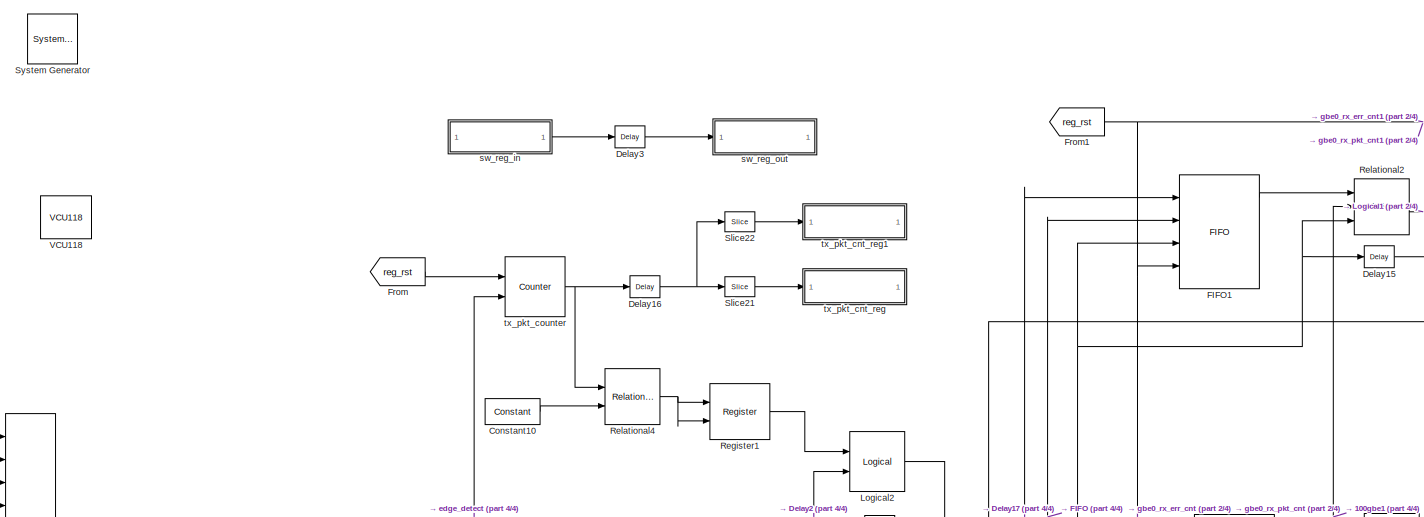
[diagram: root canvas - part 1/4, top center region]
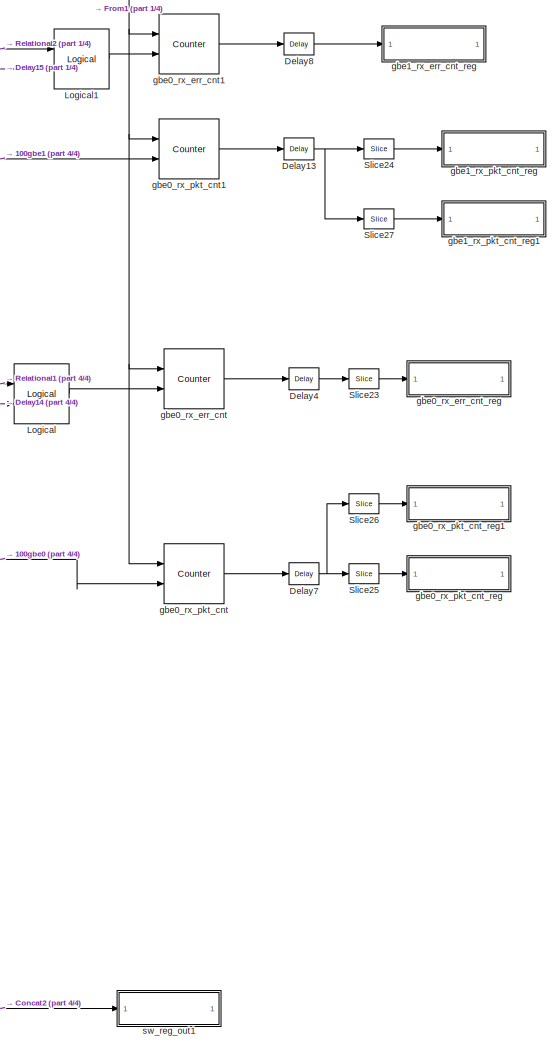
[diagram: root canvas - part 2/4, middle right region]
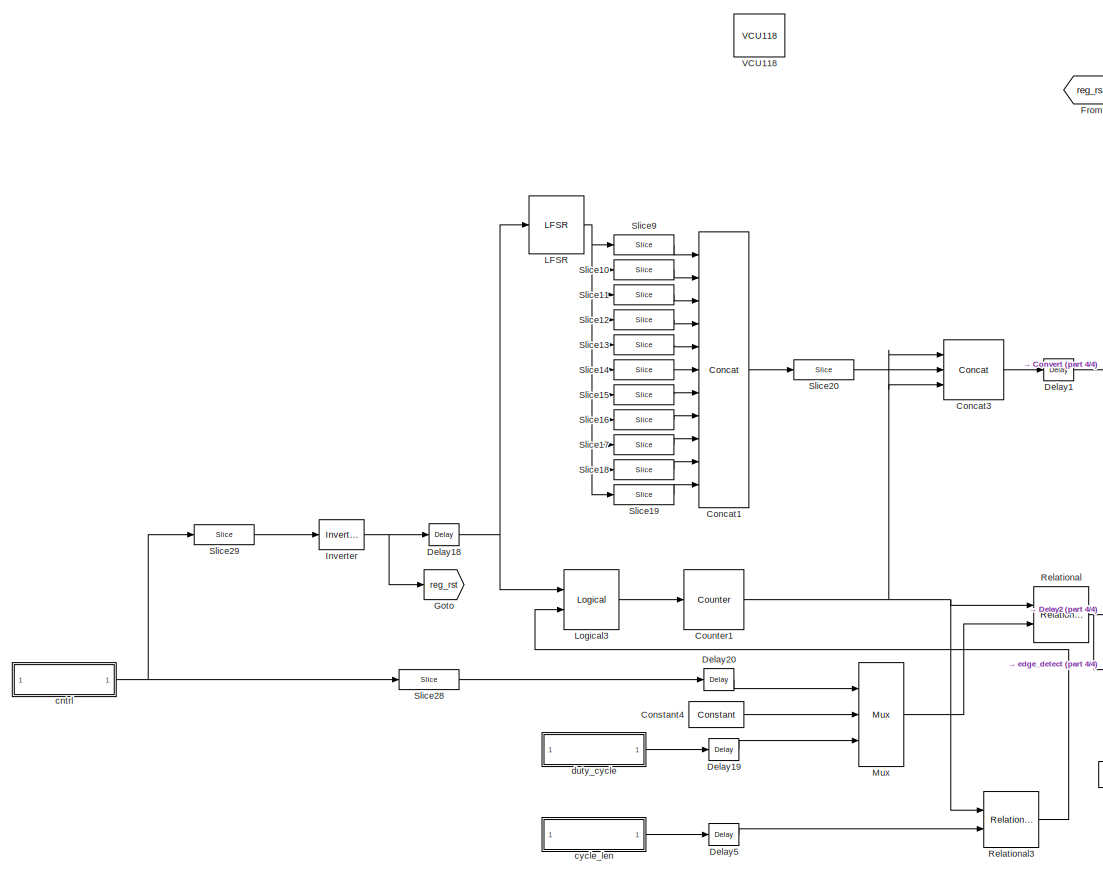
[diagram: root canvas - part 3/4, middle left region]
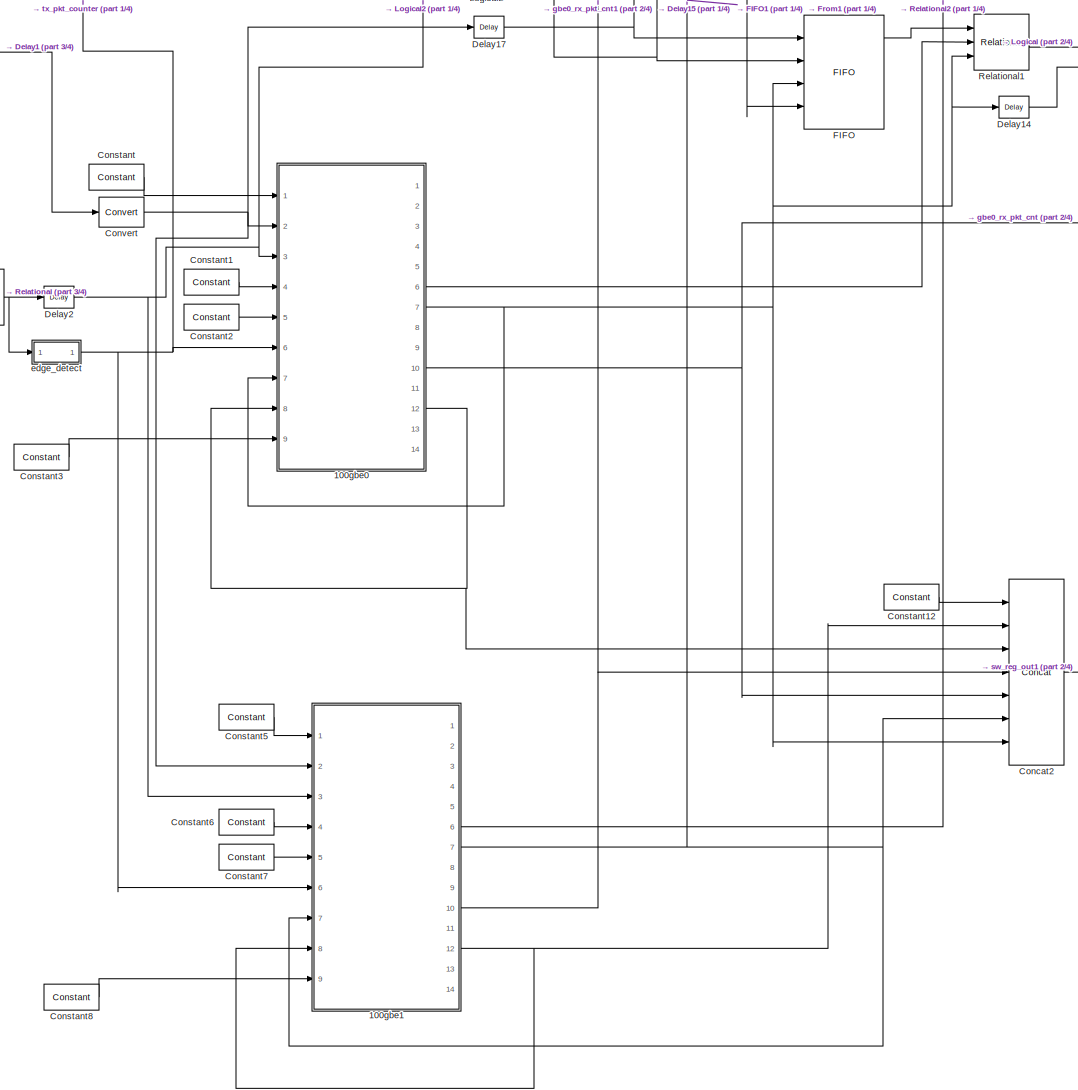
[diagram: root canvas - part 4/4, central region]
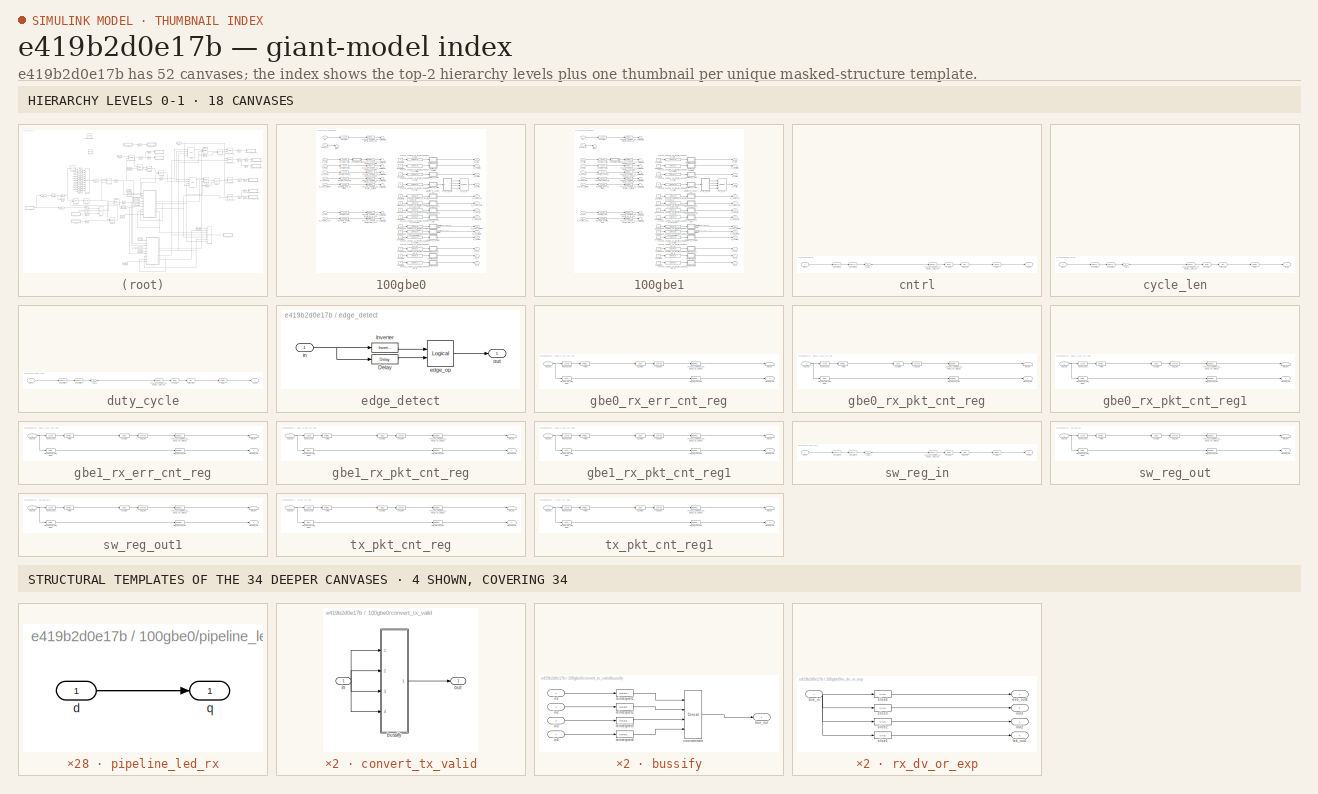
[diagram: thumbnail index - top-2 hierarchy levels (18 canvases) + 4 structural-template representatives of the remaining 34 canvases]
MODEL slx_e419b2d0e17b
KIND model
CONFIG AbsTol = auto
CONFIG EnableMultiTasking = off
CONFIG FixedStep = auto
CONFIG MaxStep = auto
CONFIG MinStep = auto
CONFIG RelTol = 1e-3
CONFIG SampleTimeConstraint = Unconstrained
CONFIG Solver = VariableStepAuto
CONFIG SolverName = VariableStepAuto
CONFIG StartTime = 0.0
CONFIG StopTime = 10.0
BLOCK [Reference]  System Generator  REF=xbsIndex_r4/ System Generator
  AttributesFormatString = System\nGenerator
  Ports = []
  SourceBlock = xbsIndex_r4/ System Generator
  SourceType = Xilinx System Generator Block
  Tag = genX
  UserDataPersistent = on
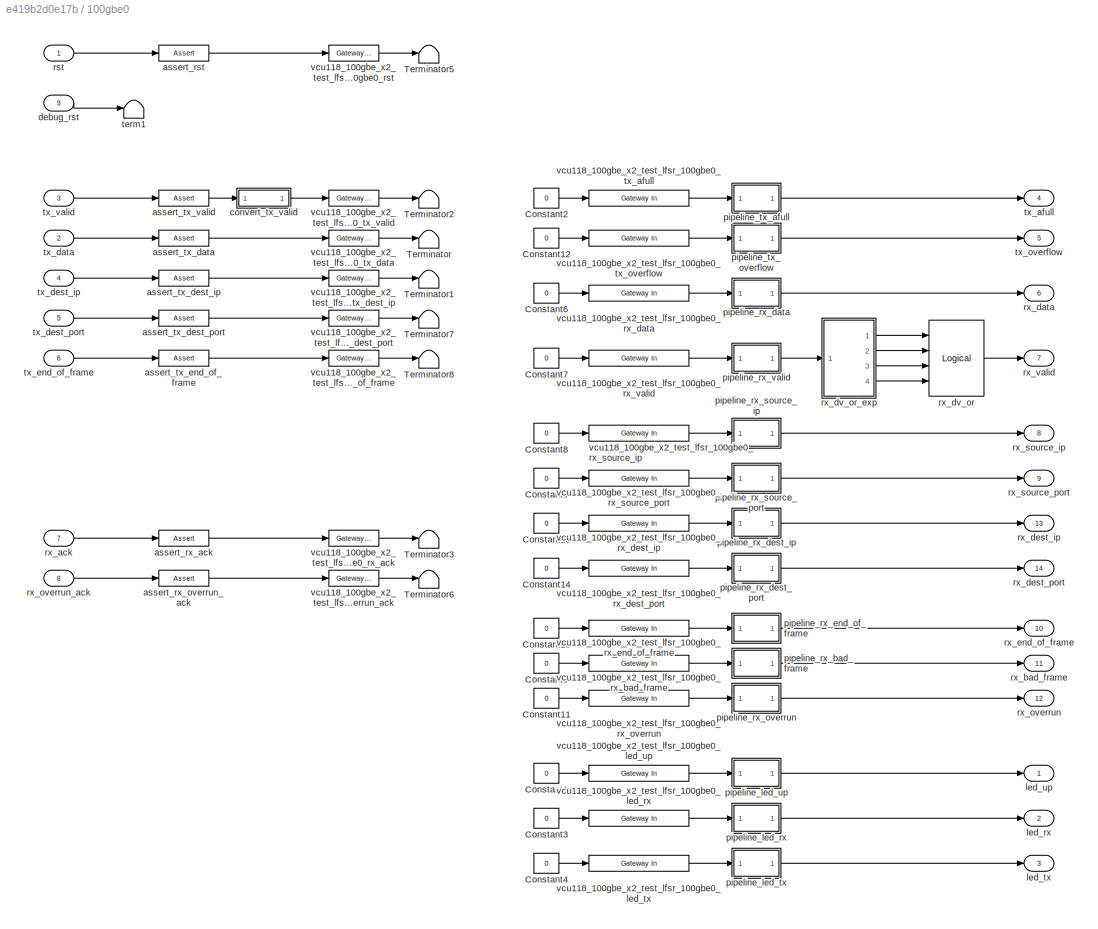
BLOCK [SubSystem] 100gbe0
  AncestorBlock = xps_library/IO/onehundred_gbe
  AttributesFormatString = incoming_latency=0
  Ports = [9, 14]
  RequestExecContextInheritance = off
  Tag = xps:onehundred_gbe
BLOCK [Constant] 100gbe0/Constant1
  Value = 0
BLOCK [Constant] 100gbe0/Constant10
  Value = 0
BLOCK [Constant] 100gbe0/Constant11
  Value = 0
BLOCK [Constant] 100gbe0/Constant12
  Value = 0
BLOCK [Constant] 100gbe0/Constant13
  Value = 0
BLOCK [Constant] 100gbe0/Constant14
  Value = 0
BLOCK [Constant] 100gbe0/Constant2
  Value = 0
BLOCK [Constant] 100gbe0/Constant3
  Value = 0
BLOCK [Constant] 100gbe0/Constant4
  Value = 0
BLOCK [Constant] 100gbe0/Constant5
  Value = 0
BLOCK [Constant] 100gbe0/Constant6
  Value = 0
BLOCK [Constant] 100gbe0/Constant7
  Value = 0
BLOCK [Constant] 100gbe0/Constant8
  Value = 0
BLOCK [Constant] 100gbe0/Constant9
  Value = 0
BLOCK [Terminator] 100gbe0/Terminator
BLOCK [Terminator] 100gbe0/Terminator1
BLOCK [Terminator] 100gbe0/Terminator2
BLOCK [Terminator] 100gbe0/Terminator3
BLOCK [Terminator] 100gbe0/Terminator5
BLOCK [Terminator] 100gbe0/Terminator6
BLOCK [Terminator] 100gbe0/Terminator7
BLOCK [Terminator] 100gbe0/Terminator8
BLOCK [Reference] 100gbe0/assert_rst  REF=xbsIndex_r4/Assert
  Ports = [1, 1]
  SourceBlock = xbsIndex_r4/Assert
  SourceType = Xilinx Assert Block
BLOCK [Reference] 100gbe0/assert_rx_ack  REF=xbsIndex_r4/Assert
  Ports = [1, 1]
  SourceBlock = xbsIndex_r4/Assert
  SourceType = Xilinx Assert Block
BLOCK [Reference] 100gbe0/assert_rx_overrun_ack  REF=xbsIndex_r4/Assert
  Ports = [1, 1]
  SourceBlock = xbsIndex_r4/Assert
  SourceType = Xilinx Assert Block
BLOCK [Reference] 100gbe0/assert_tx_data  REF=xbsIndex_r4/Assert
  Ports = [1, 1]
  SourceBlock = xbsIndex_r4/Assert
  SourceType = Xilinx Assert Block
BLOCK [Reference] 100gbe0/assert_tx_dest_ip  REF=xbsIndex_r4/Assert
  Ports = [1, 1]
  SourceBlock = xbsIndex_r4/Assert
  SourceType = Xilinx Assert Block
BLOCK [Reference] 100gbe0/assert_tx_dest_port  REF=xbsIndex_r4/Assert
  Ports = [1, 1]
  SourceBlock = xbsIndex_r4/Assert
  SourceType = Xilinx Assert Block
BLOCK [Reference] 100gbe0/assert_tx_end_of_frame  REF=xbsIndex_r4/Assert
  Ports = [1, 1]
  SourceBlock = xbsIndex_r4/Assert
  SourceType = Xilinx Assert Block
BLOCK [Reference] 100gbe0/assert_tx_valid  REF=xbsIndex_r4/Assert
  Ports = [1, 1]
  SourceBlock = xbsIndex_r4/Assert
  SourceType = Xilinx Assert Block
BLOCK [SubSystem] 100gbe0/convert_tx_valid
  AncestorBlock = casper_library_bus/bus_replicate
  Ports = [1, 1]
  RequestExecContextInheritance = off
  UserDataPersistent = on
BLOCK [SubSystem] 100gbe0/convert_tx_valid/bussify
  AncestorBlock = casper_library_flow_control/bus_create
  Ports = [4, 1]
  RequestExecContextInheritance = off
  UserDataPersistent = on
BLOCK [Outport] 100gbe0/convert_tx_valid/bussify/bus_out
  IconDisplay = Port number
BLOCK [Reference] 100gbe0/convert_tx_valid/bussify/concatenate  REF=xbsIndex_r4/Concat
  Ports = [4, 1]
  SourceBlock = xbsIndex_r4/Concat
  SourceType = Xilinx Bus Concatenator Block
BLOCK [Inport] 100gbe0/convert_tx_valid/bussify/in1
  IconDisplay = Port number
BLOCK [Inport] 100gbe0/convert_tx_valid/bussify/in2
  IconDisplay = Port number
  Port = 2
BLOCK [Inport] 100gbe0/convert_tx_valid/bussify/in3
  IconDisplay = Port number
  Port = 3
BLOCK [Inport] 100gbe0/convert_tx_valid/bussify/in4
  IconDisplay = Port number
  Port = 4
BLOCK [Reference] 100gbe0/convert_tx_valid/bussify/reinterpret1  REF=xbsIndex_r4/Reinterpret
  Ports = [1, 1]
  SourceBlock = xbsIndex_r4/Reinterpret
  SourceType = Xilinx Type Reinterpreter Block
BLOCK [Reference] 100gbe0/convert_tx_valid/bussify/reinterpret2  REF=xbsIndex_r4/Reinterpret
  Ports = [1, 1]
  SourceBlock = xbsIndex_r4/Reinterpret
  SourceType = Xilinx Type Reinterpreter Block
BLOCK [Reference] 100gbe0/convert_tx_valid/bussify/reinterpret3  REF=xbsIndex_r4/Reinterpret
  Ports = [1, 1]
  SourceBlock = xbsIndex_r4/Reinterpret
  SourceType = Xilinx Type Reinterpreter Block
BLOCK [Reference] 100gbe0/convert_tx_valid/bussify/reinterpret4  REF=xbsIndex_r4/Reinterpret
  Ports = [1, 1]
  SourceBlock = xbsIndex_r4/Reinterpret
  SourceType = Xilinx Type Reinterpreter Block
BLOCK [Inport] 100gbe0/convert_tx_valid/in
  IconDisplay = Port number
BLOCK [Outport] 100gbe0/convert_tx_valid/out
  IconDisplay = Port number
BLOCK [Inport] 100gbe0/debug_rst
  IconDisplay = Port number
  Port = 9
BLOCK [Outport] 100gbe0/led_rx
  IconDisplay = Port number
  Port = 2
BLOCK [Outport] 100gbe0/led_tx
  IconDisplay = Port number
  Port = 3
BLOCK [Outport] 100gbe0/led_up
  IconDisplay = Port number
BLOCK [SubSystem] 100gbe0/pipeline_led_rx
  AncestorBlock = casper_library_delays/pipeline
  AttributesFormatString = Latency = %<latency>
  Ports = [1, 1]
  RequestExecContextInheritance = off
  UserDataPersistent = on
BLOCK [Inport] 100gbe0/pipeline_led_rx/d
  IconDisplay = Port number
BLOCK [Outport] 100gbe0/pipeline_led_rx/q
  IconDisplay = Port number
BLOCK [SubSystem] 100gbe0/pipeline_led_tx
  AncestorBlock = casper_library_delays/pipeline
  AttributesFormatString = Latency = %<latency>
  Ports = [1, 1]
  RequestExecContextInheritance = off
  UserDataPersistent = on
BLOCK [Inport] 100gbe0/pipeline_led_tx/d
  IconDisplay = Port number
BLOCK [Outport] 100gbe0/pipeline_led_tx/q
  IconDisplay = Port number
BLOCK [SubSystem] 100gbe0/pipeline_led_up
  AncestorBlock = casper_library_delays/pipeline
  AttributesFormatString = Latency = %<latency>
  Ports = [1, 1]
  RequestExecContextInheritance = off
  UserDataPersistent = on
BLOCK [Inport] 100gbe0/pipeline_led_up/d
  IconDisplay = Port number
BLOCK [Outport] 100gbe0/pipeline_led_up/q
  IconDisplay = Port number
BLOCK [SubSystem] 100gbe0/pipeline_rx_bad_frame
  AncestorBlock = casper_library_delays/pipeline
  AttributesFormatString = Latency = %<latency>
  Ports = [1, 1]
  RequestExecContextInheritance = off
  UserDataPersistent = on
BLOCK [Inport] 100gbe0/pipeline_rx_bad_frame/d
  IconDisplay = Port number
BLOCK [Outport] 100gbe0/pipeline_rx_bad_frame/q
  IconDisplay = Port number
BLOCK [SubSystem] 100gbe0/pipeline_rx_data
  AncestorBlock = casper_library_delays/pipeline
  AttributesFormatString = Latency = %<latency>
  Ports = [1, 1]
  RequestExecContextInheritance = off
  UserDataPersistent = on
BLOCK [Inport] 100gbe0/pipeline_rx_data/d
  IconDisplay = Port number
BLOCK [Outport] 100gbe0/pipeline_rx_data/q
  IconDisplay = Port number
BLOCK [SubSystem] 100gbe0/pipeline_rx_dest_ip
  AncestorBlock = casper_library_delays/pipeline
  AttributesFormatString = Latency = %<latency>
  Ports = [1, 1]
  RequestExecContextInheritance = off
  UserDataPersistent = on
BLOCK [Inport] 100gbe0/pipeline_rx_dest_ip/d
  IconDisplay = Port number
BLOCK [Outport] 100gbe0/pipeline_rx_dest_ip/q
  IconDisplay = Port number
BLOCK [SubSystem] 100gbe0/pipeline_rx_dest_port
  AncestorBlock = casper_library_delays/pipeline
  AttributesFormatString = Latency = %<latency>
  Ports = [1, 1]
  RequestExecContextInheritance = off
  UserDataPersistent = on
BLOCK [Inport] 100gbe0/pipeline_rx_dest_port/d
  IconDisplay = Port number
BLOCK [Outport] 100gbe0/pipeline_rx_dest_port/q
  IconDisplay = Port number
BLOCK [SubSystem] 100gbe0/pipeline_rx_end_of_frame
  AncestorBlock = casper_library_delays/pipeline
  AttributesFormatString = Latency = %<latency>
  Ports = [1, 1]
  RequestExecContextInheritance = off
  UserDataPersistent = on
BLOCK [Inport] 100gbe0/pipeline_rx_end_of_frame/d
  IconDisplay = Port number
BLOCK [Outport] 100gbe0/pipeline_rx_end_of_frame/q
  IconDisplay = Port number
BLOCK [SubSystem] 100gbe0/pipeline_rx_overrun
  AncestorBlock = casper_library_delays/pipeline
  AttributesFormatString = Latency = %<latency>
  Ports = [1, 1]
  RequestExecContextInheritance = off
  UserDataPersistent = on
BLOCK [Inport] 100gbe0/pipeline_rx_overrun/d
  IconDisplay = Port number
BLOCK [Outport] 100gbe0/pipeline_rx_overrun/q
  IconDisplay = Port number
BLOCK [SubSystem] 100gbe0/pipeline_rx_source_ip
  AncestorBlock = casper_library_delays/pipeline
  AttributesFormatString = Latency = %<latency>
  Ports = [1, 1]
  RequestExecContextInheritance = off
  UserDataPersistent = on
BLOCK [Inport] 100gbe0/pipeline_rx_source_ip/d
  IconDisplay = Port number
BLOCK [Outport] 100gbe0/pipeline_rx_source_ip/q
  IconDisplay = Port number
BLOCK [SubSystem] 100gbe0/pipeline_rx_source_port
  AncestorBlock = casper_library_delays/pipeline
  AttributesFormatString = Latency = %<latency>
  Ports = [1, 1]
  RequestExecContextInheritance = off
  UserDataPersistent = on
BLOCK [Inport] 100gbe0/pipeline_rx_source_port/d
  IconDisplay = Port number
BLOCK [Outport] 100gbe0/pipeline_rx_source_port/q
  IconDisplay = Port number
BLOCK [SubSystem] 100gbe0/pipeline_rx_valid
  AncestorBlock = casper_library_delays/pipeline
  AttributesFormatString = Latency = %<latency>
  Ports = [1, 1]
  RequestExecContextInheritance = off
  UserDataPersistent = on
BLOCK [Inport] 100gbe0/pipeline_rx_valid/d
  IconDisplay = Port number
BLOCK [Outport] 100gbe0/pipeline_rx_valid/q
  IconDisplay = Port number
BLOCK [SubSystem] 100gbe0/pipeline_tx_afull
  AncestorBlock = casper_library_delays/pipeline
  AttributesFormatString = Latency = %<latency>
  Ports = [1, 1]
  RequestExecContextInheritance = off
  UserDataPersistent = on
BLOCK [Inport] 100gbe0/pipeline_tx_afull/d
  IconDisplay = Port number
BLOCK [Outport] 100gbe0/pipeline_tx_afull/q
  IconDisplay = Port number
BLOCK [SubSystem] 100gbe0/pipeline_tx_overflow
  AncestorBlock = casper_library_delays/pipeline
  AttributesFormatString = Latency = %<latency>
  Ports = [1, 1]
  RequestExecContextInheritance = off
  UserDataPersistent = on
BLOCK [Inport] 100gbe0/pipeline_tx_overflow/d
  IconDisplay = Port number
BLOCK [Outport] 100gbe0/pipeline_tx_overflow/q
  IconDisplay = Port number
BLOCK [Inport] 100gbe0/rst
  IconDisplay = Port number
BLOCK [Inport] 100gbe0/rx_ack
  IconDisplay = Port number
  Port = 7
BLOCK [Outport] 100gbe0/rx_bad_frame
  IconDisplay = Port number
  Port = 11
BLOCK [Outport] 100gbe0/rx_data
  IconDisplay = Port number
  Port = 6
BLOCK [Outport] 100gbe0/rx_dest_ip
  IconDisplay = Port number
  Port = 13
BLOCK [Outport] 100gbe0/rx_dest_port
  IconDisplay = Port number
  Port = 14
BLOCK [Reference] 100gbe0/rx_dv_or  REF=xbsIndex_r4/Logical
  Ports = [4, 1]
  SourceBlock = xbsIndex_r4/Logical
  SourceType = Xilinx Logical Block Block
BLOCK [SubSystem] 100gbe0/rx_dv_or_exp
  AncestorBlock = casper_library_flow_control/bus_expand
  AttributesFormatString = 4 outputs
  Ports = [1, 4]
  RequestExecContextInheritance = off
  UserDataPersistent = on
BLOCK [Inport] 100gbe0/rx_dv_or_exp/bus_in
  IconDisplay = Port number
BLOCK [Outport] 100gbe0/rx_dv_or_exp/lsb_out1
  IconDisplay = Port number
  Port = 4
BLOCK [Outport] 100gbe0/rx_dv_or_exp/msb_out4
  IconDisplay = Port number
BLOCK [Outport] 100gbe0/rx_dv_or_exp/out2
  IconDisplay = Port number
  Port = 3
BLOCK [Outport] 100gbe0/rx_dv_or_exp/out3
  IconDisplay = Port number
  Port = 2
BLOCK [Reference] 100gbe0/rx_dv_or_exp/slice1  REF=xbsIndex_r4/Slice
  Ports = [1, 1]
  SourceBlock = xbsIndex_r4/Slice
  SourceType = Xilinx Bit Slice Extractor Block
BLOCK [Reference] 100gbe0/rx_dv_or_exp/slice2  REF=xbsIndex_r4/Slice
  Ports = [1, 1]
  SourceBlock = xbsIndex_r4/Slice
  SourceType = Xilinx Bit Slice Extractor Block
BLOCK [Reference] 100gbe0/rx_dv_or_exp/slice3  REF=xbsIndex_r4/Slice
  Ports = [1, 1]
  SourceBlock = xbsIndex_r4/Slice
  SourceType = Xilinx Bit Slice Extractor Block
BLOCK [Reference] 100gbe0/rx_dv_or_exp/slice4  REF=xbsIndex_r4/Slice
  Ports = [1, 1]
  SourceBlock = xbsIndex_r4/Slice
  SourceType = Xilinx Bit Slice Extractor Block
BLOCK [Outport] 100gbe0/rx_end_of_frame
  IconDisplay = Port number
  Port = 10
BLOCK [Outport] 100gbe0/rx_overrun
  IconDisplay = Port number
  Port = 12
BLOCK [Inport] 100gbe0/rx_overrun_ack
  IconDisplay = Port number
  Port = 8
BLOCK [Outport] 100gbe0/rx_source_ip
  IconDisplay = Port number
  Port = 8
BLOCK [Outport] 100gbe0/rx_source_port
  IconDisplay = Port number
  Port = 9
BLOCK [Outport] 100gbe0/rx_valid
  IconDisplay = Port number
  Port = 7
BLOCK [Terminator] 100gbe0/term1
BLOCK [Outport] 100gbe0/tx_afull
  IconDisplay = Port number
  Port = 4
BLOCK [Inport] 100gbe0/tx_data
  IconDisplay = Port number
  Port = 2
BLOCK [Inport] 100gbe0/tx_dest_ip
  IconDisplay = Port number
  Port = 4
BLOCK [Inport] 100gbe0/tx_dest_port
  IconDisplay = Port number
  Port = 5
BLOCK [Inport] 100gbe0/tx_end_of_frame
  IconDisplay = Port number
  Port = 6
BLOCK [Outport] 100gbe0/tx_overflow
  IconDisplay = Port number
  Port = 5
BLOCK [Inport] 100gbe0/tx_valid
  IconDisplay = Port number
  Port = 3
BLOCK [Reference] 100gbe0/vcu118_100gbe_x2_test_lfsr_100gbe0_led_rx  REF=xbsIndex_r4/Gateway In
  Ports = [1, 1]
  SourceBlock = xbsIndex_r4/Gateway In
  SourceType = Xilinx Gateway In Block
BLOCK [Reference] 100gbe0/vcu118_100gbe_x2_test_lfsr_100gbe0_led_tx  REF=xbsIndex_r4/Gateway In
  Ports = [1, 1]
  SourceBlock = xbsIndex_r4/Gateway In
  SourceType = Xilinx Gateway In Block
BLOCK [Reference] 100gbe0/vcu118_100gbe_x2_test_lfsr_100gbe0_led_up  REF=xbsIndex_r4/Gateway In
  Ports = [1, 1]
  SourceBlock = xbsIndex_r4/Gateway In
  SourceType = Xilinx Gateway In Block
BLOCK [Reference] 100gbe0/vcu118_100gbe_x2_test_lfsr_100gbe0_rst  REF=xbsIndex_r4/Gateway Out
  Ports = [1, 1]
  SourceBlock = xbsIndex_r4/Gateway Out
  SourceType = Xilinx Gateway Out Block
BLOCK [Reference] 100gbe0/vcu118_100gbe_x2_test_lfsr_100gbe0_rx_ack  REF=xbsIndex_r4/Gateway Out
  Ports = [1, 1]
  SourceBlock = xbsIndex_r4/Gateway Out
  SourceType = Xilinx Gateway Out Block
BLOCK [Reference] 100gbe0/vcu118_100gbe_x2_test_lfsr_100gbe0_rx_bad_frame  REF=xbsIndex_r4/Gateway In
  Ports = [1, 1]
  SourceBlock = xbsIndex_r4/Gateway In
  SourceType = Xilinx Gateway In Block
BLOCK [Reference] 100gbe0/vcu118_100gbe_x2_test_lfsr_100gbe0_rx_data  REF=xbsIndex_r4/Gateway In
  Ports = [1, 1]
  SourceBlock = xbsIndex_r4/Gateway In
  SourceType = Xilinx Gateway In Block
BLOCK [Reference] 100gbe0/vcu118_100gbe_x2_test_lfsr_100gbe0_rx_dest_ip  REF=xbsIndex_r4/Gateway In
  Ports = [1, 1]
  SourceBlock = xbsIndex_r4/Gateway In
  SourceType = Xilinx Gateway In Block
BLOCK [Reference] 100gbe0/vcu118_100gbe_x2_test_lfsr_100gbe0_rx_dest_port  REF=xbsIndex_r4/Gateway In
  Ports = [1, 1]
  SourceBlock = xbsIndex_r4/Gateway In
  SourceType = Xilinx Gateway In Block
BLOCK [Reference] 100gbe0/vcu118_100gbe_x2_test_lfsr_100gbe0_rx_end_of_frame  REF=xbsIndex_r4/Gateway In
  Ports = [1, 1]
  SourceBlock = xbsIndex_r4/Gateway In
  SourceType = Xilinx Gateway In Block
BLOCK [Reference] 100gbe0/vcu118_100gbe_x2_test_lfsr_100gbe0_rx_overrun  REF=xbsIndex_r4/Gateway In
  Ports = [1, 1]
  SourceBlock = xbsIndex_r4/Gateway In
  SourceType = Xilinx Gateway In Block
BLOCK [Reference] 100gbe0/vcu118_100gbe_x2_test_lfsr_100gbe0_rx_overrun_ack  REF=xbsIndex_r4/Gateway Out
  Ports = [1, 1]
  SourceBlock = xbsIndex_r4/Gateway Out
  SourceType = Xilinx Gateway Out Block
BLOCK [Reference] 100gbe0/vcu118_100gbe_x2_test_lfsr_100gbe0_rx_source_ip  REF=xbsIndex_r4/Gateway In
  Ports = [1, 1]
  SourceBlock = xbsIndex_r4/Gateway In
  SourceType = Xilinx Gateway In Block
BLOCK [Reference] 100gbe0/vcu118_100gbe_x2_test_lfsr_100gbe0_rx_source_port  REF=xbsIndex_r4/Gateway In
  Ports = [1, 1]
  SourceBlock = xbsIndex_r4/Gateway In
  SourceType = Xilinx Gateway In Block
BLOCK [Reference] 100gbe0/vcu118_100gbe_x2_test_lfsr_100gbe0_rx_valid  REF=xbsIndex_r4/Gateway In
  Ports = [1, 1]
  SourceBlock = xbsIndex_r4/Gateway In
  SourceType = Xilinx Gateway In Block
BLOCK [Reference] 100gbe0/vcu118_100gbe_x2_test_lfsr_100gbe0_tx_afull  REF=xbsIndex_r4/Gateway In
  Ports = [1, 1]
  SourceBlock = xbsIndex_r4/Gateway In
  SourceType = Xilinx Gateway In Block
BLOCK [Reference] 100gbe0/vcu118_100gbe_x2_test_lfsr_100gbe0_tx_data  REF=xbsIndex_r4/Gateway Out
  Ports = [1, 1]
  SourceBlock = xbsIndex_r4/Gateway Out
  SourceType = Xilinx Gateway Out Block
BLOCK [Reference] 100gbe0/vcu118_100gbe_x2_test_lfsr_100gbe0_tx_dest_ip  REF=xbsIndex_r4/Gateway Out
  Ports = [1, 1]
  SourceBlock = xbsIndex_r4/Gateway Out
  SourceType = Xilinx Gateway Out Block
BLOCK [Reference] 100gbe0/vcu118_100gbe_x2_test_lfsr_100gbe0_tx_dest_port  REF=xbsIndex_r4/Gateway Out
  Ports = [1, 1]
  SourceBlock = xbsIndex_r4/Gateway Out
  SourceType = Xilinx Gateway Out Block
BLOCK [Reference] 100gbe0/vcu118_100gbe_x2_test_lfsr_100gbe0_tx_end_of_frame  REF=xbsIndex_r4/Gateway Out
  Ports = [1, 1]
  SourceBlock = xbsIndex_r4/Gateway Out
  SourceType = Xilinx Gateway Out Block
BLOCK [Reference] 100gbe0/vcu118_100gbe_x2_test_lfsr_100gbe0_tx_overflow  REF=xbsIndex_r4/Gateway In
  Ports = [1, 1]
  SourceBlock = xbsIndex_r4/Gateway In
  SourceType = Xilinx Gateway In Block
BLOCK [Reference] 100gbe0/vcu118_100gbe_x2_test_lfsr_100gbe0_tx_valid  REF=xbsIndex_r4/Gateway Out
  Ports = [1, 1]
  SourceBlock = xbsIndex_r4/Gateway Out
  SourceType = Xilinx Gateway Out Block
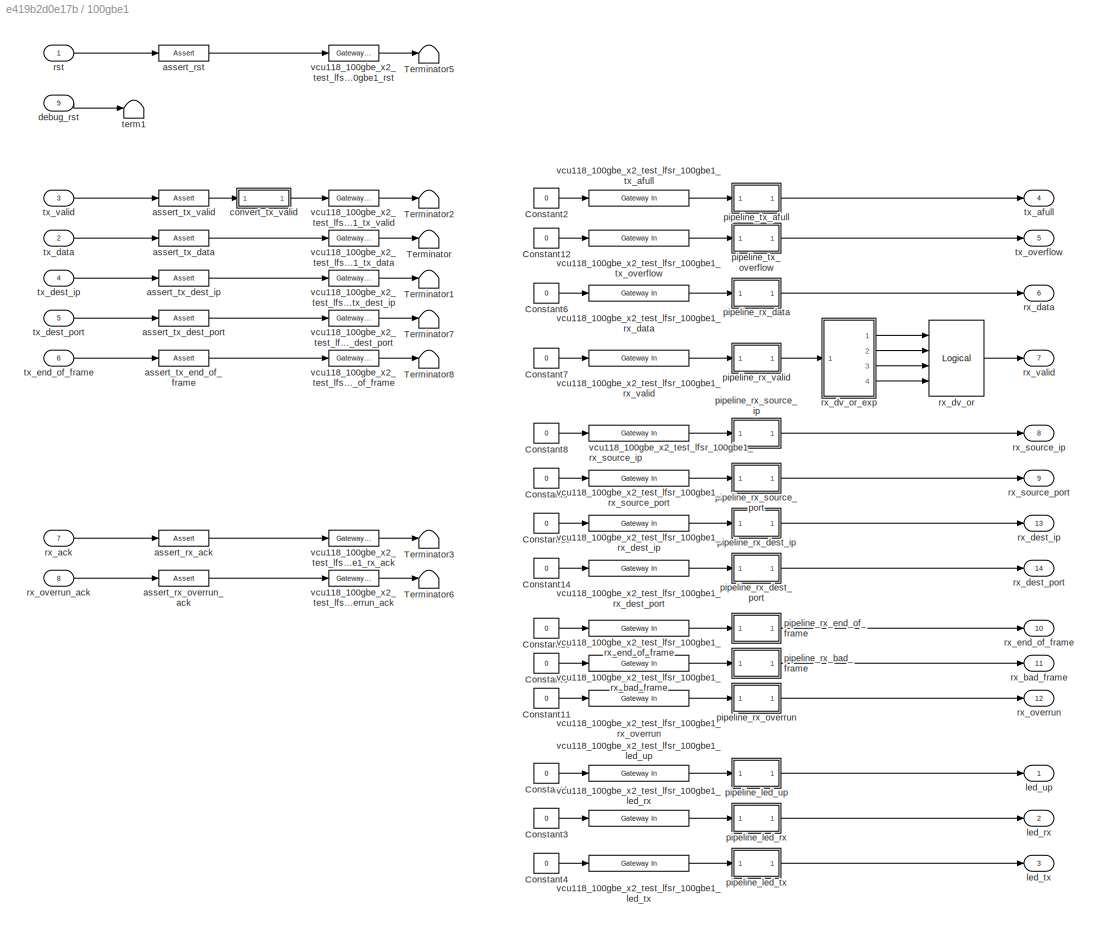
BLOCK [SubSystem] 100gbe1
  AncestorBlock = xps_library/IO/onehundred_gbe
  AttributesFormatString = incoming_latency=0
  Ports = [9, 14]
  RequestExecContextInheritance = off
  Tag = xps:onehundred_gbe
BLOCK [Constant] 100gbe1/Constant1
  Value = 0
BLOCK [Constant] 100gbe1/Constant10
  Value = 0
BLOCK [Constant] 100gbe1/Constant11
  Value = 0
BLOCK [Constant] 100gbe1/Constant12
  Value = 0
BLOCK [Constant] 100gbe1/Constant13
  Value = 0
BLOCK [Constant] 100gbe1/Constant14
  Value = 0
BLOCK [Constant] 100gbe1/Constant2
  Value = 0
BLOCK [Constant] 100gbe1/Constant3
  Value = 0
BLOCK [Constant] 100gbe1/Constant4
  Value = 0
BLOCK [Constant] 100gbe1/Constant5
  Value = 0
BLOCK [Constant] 100gbe1/Constant6
  Value = 0
BLOCK [Constant] 100gbe1/Constant7
  Value = 0
BLOCK [Constant] 100gbe1/Constant8
  Value = 0
BLOCK [Constant] 100gbe1/Constant9
  Value = 0
BLOCK [Terminator] 100gbe1/Terminator
BLOCK [Terminator] 100gbe1/Terminator1
BLOCK [Terminator] 100gbe1/Terminator2
BLOCK [Terminator] 100gbe1/Terminator3
BLOCK [Terminator] 100gbe1/Terminator5
BLOCK [Terminator] 100gbe1/Terminator6
BLOCK [Terminator] 100gbe1/Terminator7
BLOCK [Terminator] 100gbe1/Terminator8
BLOCK [Reference] 100gbe1/assert_rst  REF=xbsIndex_r4/Assert
  Ports = [1, 1]
  SourceBlock = xbsIndex_r4/Assert
  SourceType = Xilinx Assert Block
BLOCK [Reference] 100gbe1/assert_rx_ack  REF=xbsIndex_r4/Assert
  Ports = [1, 1]
  SourceBlock = xbsIndex_r4/Assert
  SourceType = Xilinx Assert Block
BLOCK [Reference] 100gbe1/assert_rx_overrun_ack  REF=xbsIndex_r4/Assert
  Ports = [1, 1]
  SourceBlock = xbsIndex_r4/Assert
  SourceType = Xilinx Assert Block
BLOCK [Reference] 100gbe1/assert_tx_data  REF=xbsIndex_r4/Assert
  Ports = [1, 1]
  SourceBlock = xbsIndex_r4/Assert
  SourceType = Xilinx Assert Block
BLOCK [Reference] 100gbe1/assert_tx_dest_ip  REF=xbsIndex_r4/Assert
  Ports = [1, 1]
  SourceBlock = xbsIndex_r4/Assert
  SourceType = Xilinx Assert Block
BLOCK [Reference] 100gbe1/assert_tx_dest_port  REF=xbsIndex_r4/Assert
  Ports = [1, 1]
  SourceBlock = xbsIndex_r4/Assert
  SourceType = Xilinx Assert Block
BLOCK [Reference] 100gbe1/assert_tx_end_of_frame  REF=xbsIndex_r4/Assert
  Ports = [1, 1]
  SourceBlock = xbsIndex_r4/Assert
  SourceType = Xilinx Assert Block
BLOCK [Reference] 100gbe1/assert_tx_valid  REF=xbsIndex_r4/Assert
  Ports = [1, 1]
  SourceBlock = xbsIndex_r4/Assert
  SourceType = Xilinx Assert Block
BLOCK [SubSystem] 100gbe1/convert_tx_valid
  AncestorBlock = casper_library_bus/bus_replicate
  Ports = [1, 1]
  RequestExecContextInheritance = off
  UserDataPersistent = on
BLOCK [SubSystem] 100gbe1/convert_tx_valid/bussify
  AncestorBlock = casper_library_flow_control/bus_create
  Ports = [4, 1]
  RequestExecContextInheritance = off
  UserDataPersistent = on
BLOCK [Outport] 100gbe1/convert_tx_valid/bussify/bus_out
  IconDisplay = Port number
BLOCK [Reference] 100gbe1/convert_tx_valid/bussify/concatenate  REF=xbsIndex_r4/Concat
  Ports = [4, 1]
  SourceBlock = xbsIndex_r4/Concat
  SourceType = Xilinx Bus Concatenator Block
BLOCK [Inport] 100gbe1/convert_tx_valid/bussify/in1
  IconDisplay = Port number
BLOCK [Inport] 100gbe1/convert_tx_valid/bussify/in2
  IconDisplay = Port number
  Port = 2
BLOCK [Inport] 100gbe1/convert_tx_valid/bussify/in3
  IconDisplay = Port number
  Port = 3
BLOCK [Inport] 100gbe1/convert_tx_valid/bussify/in4
  IconDisplay = Port number
  Port = 4
BLOCK [Reference] 100gbe1/convert_tx_valid/bussify/reinterpret1  REF=xbsIndex_r4/Reinterpret
  Ports = [1, 1]
  SourceBlock = xbsIndex_r4/Reinterpret
  SourceType = Xilinx Type Reinterpreter Block
BLOCK [Reference] 100gbe1/convert_tx_valid/bussify/reinterpret2  REF=xbsIndex_r4/Reinterpret
  Ports = [1, 1]
  SourceBlock = xbsIndex_r4/Reinterpret
  SourceType = Xilinx Type Reinterpreter Block
BLOCK [Reference] 100gbe1/convert_tx_valid/bussify/reinterpret3  REF=xbsIndex_r4/Reinterpret
  Ports = [1, 1]
  SourceBlock = xbsIndex_r4/Reinterpret
  SourceType = Xilinx Type Reinterpreter Block
BLOCK [Reference] 100gbe1/convert_tx_valid/bussify/reinterpret4  REF=xbsIndex_r4/Reinterpret
  Ports = [1, 1]
  SourceBlock = xbsIndex_r4/Reinterpret
  SourceType = Xilinx Type Reinterpreter Block
BLOCK [Inport] 100gbe1/convert_tx_valid/in
  IconDisplay = Port number
BLOCK [Outport] 100gbe1/convert_tx_valid/out
  IconDisplay = Port number
BLOCK [Inport] 100gbe1/debug_rst
  IconDisplay = Port number
  Port = 9
BLOCK [Outport] 100gbe1/led_rx
  IconDisplay = Port number
  Port = 2
BLOCK [Outport] 100gbe1/led_tx
  IconDisplay = Port number
  Port = 3
BLOCK [Outport] 100gbe1/led_up
  IconDisplay = Port number
BLOCK [SubSystem] 100gbe1/pipeline_led_rx
  AncestorBlock = casper_library_delays/pipeline
  AttributesFormatString = Latency = %<latency>
  Ports = [1, 1]
  RequestExecContextInheritance = off
  UserDataPersistent = on
BLOCK [Inport] 100gbe1/pipeline_led_rx/d
  IconDisplay = Port number
BLOCK [Outport] 100gbe1/pipeline_led_rx/q
  IconDisplay = Port number
BLOCK [SubSystem] 100gbe1/pipeline_led_tx
  AncestorBlock = casper_library_delays/pipeline
  AttributesFormatString = Latency = %<latency>
  Ports = [1, 1]
  RequestExecContextInheritance = off
  UserDataPersistent = on
BLOCK [Inport] 100gbe1/pipeline_led_tx/d
  IconDisplay = Port number
BLOCK [Outport] 100gbe1/pipeline_led_tx/q
  IconDisplay = Port number
BLOCK [SubSystem] 100gbe1/pipeline_led_up
  AncestorBlock = casper_library_delays/pipeline
  AttributesFormatString = Latency = %<latency>
  Ports = [1, 1]
  RequestExecContextInheritance = off
  UserDataPersistent = on
BLOCK [Inport] 100gbe1/pipeline_led_up/d
  IconDisplay = Port number
BLOCK [Outport] 100gbe1/pipeline_led_up/q
  IconDisplay = Port number
BLOCK [SubSystem] 100gbe1/pipeline_rx_bad_frame
  AncestorBlock = casper_library_delays/pipeline
  AttributesFormatString = Latency = %<latency>
  Ports = [1, 1]
  RequestExecContextInheritance = off
  UserDataPersistent = on
BLOCK [Inport] 100gbe1/pipeline_rx_bad_frame/d
  IconDisplay = Port number
BLOCK [Outport] 100gbe1/pipeline_rx_bad_frame/q
  IconDisplay = Port number
BLOCK [SubSystem] 100gbe1/pipeline_rx_data
  AncestorBlock = casper_library_delays/pipeline
  AttributesFormatString = Latency = %<latency>
  Ports = [1, 1]
  RequestExecContextInheritance = off
  UserDataPersistent = on
BLOCK [Inport] 100gbe1/pipeline_rx_data/d
  IconDisplay = Port number
BLOCK [Outport] 100gbe1/pipeline_rx_data/q
  IconDisplay = Port number
BLOCK [SubSystem] 100gbe1/pipeline_rx_dest_ip
  AncestorBlock = casper_library_delays/pipeline
  AttributesFormatString = Latency = %<latency>
  Ports = [1, 1]
  RequestExecContextInheritance = off
  UserDataPersistent = on
BLOCK [Inport] 100gbe1/pipeline_rx_dest_ip/d
  IconDisplay = Port number
BLOCK [Outport] 100gbe1/pipeline_rx_dest_ip/q
  IconDisplay = Port number
BLOCK [SubSystem] 100gbe1/pipeline_rx_dest_port
  AncestorBlock = casper_library_delays/pipeline
  AttributesFormatString = Latency = %<latency>
  Ports = [1, 1]
  RequestExecContextInheritance = off
  UserDataPersistent = on
BLOCK [Inport] 100gbe1/pipeline_rx_dest_port/d
  IconDisplay = Port number
BLOCK [Outport] 100gbe1/pipeline_rx_dest_port/q
  IconDisplay = Port number
BLOCK [SubSystem] 100gbe1/pipeline_rx_end_of_frame
  AncestorBlock = casper_library_delays/pipeline
  AttributesFormatString = Latency = %<latency>
  Ports = [1, 1]
  RequestExecContextInheritance = off
  UserDataPersistent = on
BLOCK [Inport] 100gbe1/pipeline_rx_end_of_frame/d
  IconDisplay = Port number
BLOCK [Outport] 100gbe1/pipeline_rx_end_of_frame/q
  IconDisplay = Port number
BLOCK [SubSystem] 100gbe1/pipeline_rx_overrun
  AncestorBlock = casper_library_delays/pipeline
  AttributesFormatString = Latency = %<latency>
  Ports = [1, 1]
  RequestExecContextInheritance = off
  UserDataPersistent = on
BLOCK [Inport] 100gbe1/pipeline_rx_overrun/d
  IconDisplay = Port number
BLOCK [Outport] 100gbe1/pipeline_rx_overrun/q
  IconDisplay = Port number
BLOCK [SubSystem] 100gbe1/pipeline_rx_source_ip
  AncestorBlock = casper_library_delays/pipeline
  AttributesFormatString = Latency = %<latency>
  Ports = [1, 1]
  RequestExecContextInheritance = off
  UserDataPersistent = on
BLOCK [Inport] 100gbe1/pipeline_rx_source_ip/d
  IconDisplay = Port number
BLOCK [Outport] 100gbe1/pipeline_rx_source_ip/q
  IconDisplay = Port number
BLOCK [SubSystem] 100gbe1/pipeline_rx_source_port
  AncestorBlock = casper_library_delays/pipeline
  AttributesFormatString = Latency = %<latency>
  Ports = [1, 1]
  RequestExecContextInheritance = off
  UserDataPersistent = on
BLOCK [Inport] 100gbe1/pipeline_rx_source_port/d
  IconDisplay = Port number
BLOCK [Outport] 100gbe1/pipeline_rx_source_port/q
  IconDisplay = Port number
BLOCK [SubSystem] 100gbe1/pipeline_rx_valid
  AncestorBlock = casper_library_delays/pipeline
  AttributesFormatString = Latency = %<latency>
  Ports = [1, 1]
  RequestExecContextInheritance = off
  UserDataPersistent = on
BLOCK [Inport] 100gbe1/pipeline_rx_valid/d
  IconDisplay = Port number
BLOCK [Outport] 100gbe1/pipeline_rx_valid/q
  IconDisplay = Port number
BLOCK [SubSystem] 100gbe1/pipeline_tx_afull
  AncestorBlock = casper_library_delays/pipeline
  AttributesFormatString = Latency = %<latency>
  Ports = [1, 1]
  RequestExecContextInheritance = off
  UserDataPersistent = on
BLOCK [Inport] 100gbe1/pipeline_tx_afull/d
  IconDisplay = Port number
BLOCK [Outport] 100gbe1/pipeline_tx_afull/q
  IconDisplay = Port number
BLOCK [SubSystem] 100gbe1/pipeline_tx_overflow
  AncestorBlock = casper_library_delays/pipeline
  AttributesFormatString = Latency = %<latency>
  Ports = [1, 1]
  RequestExecContextInheritance = off
  UserDataPersistent = on
BLOCK [Inport] 100gbe1/pipeline_tx_overflow/d
  IconDisplay = Port number
BLOCK [Outport] 100gbe1/pipeline_tx_overflow/q
  IconDisplay = Port number
BLOCK [Inport] 100gbe1/rst
  IconDisplay = Port number
BLOCK [Inport] 100gbe1/rx_ack
  IconDisplay = Port number
  Port = 7
BLOCK [Outport] 100gbe1/rx_bad_frame
  IconDisplay = Port number
  Port = 11
BLOCK [Outport] 100gbe1/rx_data
  IconDisplay = Port number
  Port = 6
BLOCK [Outport] 100gbe1/rx_dest_ip
  IconDisplay = Port number
  Port = 13
BLOCK [Outport] 100gbe1/rx_dest_port
  IconDisplay = Port number
  Port = 14
BLOCK [Reference] 100gbe1/rx_dv_or  REF=xbsIndex_r4/Logical
  Ports = [4, 1]
  SourceBlock = xbsIndex_r4/Logical
  SourceType = Xilinx Logical Block Block
BLOCK [SubSystem] 100gbe1/rx_dv_or_exp
  AncestorBlock = casper_library_flow_control/bus_expand
  AttributesFormatString = 4 outputs
  Ports = [1, 4]
  RequestExecContextInheritance = off
  UserDataPersistent = on
BLOCK [Inport] 100gbe1/rx_dv_or_exp/bus_in
  IconDisplay = Port number
BLOCK [Outport] 100gbe1/rx_dv_or_exp/lsb_out1
  IconDisplay = Port number
  Port = 4
BLOCK [Outport] 100gbe1/rx_dv_or_exp/msb_out4
  IconDisplay = Port number
BLOCK [Outport] 100gbe1/rx_dv_or_exp/out2
  IconDisplay = Port number
  Port = 3
BLOCK [Outport] 100gbe1/rx_dv_or_exp/out3
  IconDisplay = Port number
  Port = 2
BLOCK [Reference] 100gbe1/rx_dv_or_exp/slice1  REF=xbsIndex_r4/Slice
  Ports = [1, 1]
  SourceBlock = xbsIndex_r4/Slice
  SourceType = Xilinx Bit Slice Extractor Block
BLOCK [Reference] 100gbe1/rx_dv_or_exp/slice2  REF=xbsIndex_r4/Slice
  Ports = [1, 1]
  SourceBlock = xbsIndex_r4/Slice
  SourceType = Xilinx Bit Slice Extractor Block
BLOCK [Reference] 100gbe1/rx_dv_or_exp/slice3  REF=xbsIndex_r4/Slice
  Ports = [1, 1]
  SourceBlock = xbsIndex_r4/Slice
  SourceType = Xilinx Bit Slice Extractor Block
BLOCK [Reference] 100gbe1/rx_dv_or_exp/slice4  REF=xbsIndex_r4/Slice
  Ports = [1, 1]
  SourceBlock = xbsIndex_r4/Slice
  SourceType = Xilinx Bit Slice Extractor Block
BLOCK [Outport] 100gbe1/rx_end_of_frame
  IconDisplay = Port number
  Port = 10
BLOCK [Outport] 100gbe1/rx_overrun
  IconDisplay = Port number
  Port = 12
BLOCK [Inport] 100gbe1/rx_overrun_ack
  IconDisplay = Port number
  Port = 8
BLOCK [Outport] 100gbe1/rx_source_ip
  IconDisplay = Port number
  Port = 8
BLOCK [Outport] 100gbe1/rx_source_port
  IconDisplay = Port number
  Port = 9
BLOCK [Outport] 100gbe1/rx_valid
  IconDisplay = Port number
  Port = 7
BLOCK [Terminator] 100gbe1/term1
BLOCK [Outport] 100gbe1/tx_afull
  IconDisplay = Port number
  Port = 4
BLOCK [Inport] 100gbe1/tx_data
  IconDisplay = Port number
  Port = 2
BLOCK [Inport] 100gbe1/tx_dest_ip
  IconDisplay = Port number
  Port = 4
BLOCK [Inport] 100gbe1/tx_dest_port
  IconDisplay = Port number
  Port = 5
BLOCK [Inport] 100gbe1/tx_end_of_frame
  IconDisplay = Port number
  Port = 6
BLOCK [Outport] 100gbe1/tx_overflow
  IconDisplay = Port number
  Port = 5
BLOCK [Inport] 100gbe1/tx_valid
  IconDisplay = Port number
  Port = 3
BLOCK [Reference] 100gbe1/vcu118_100gbe_x2_test_lfsr_100gbe1_led_rx  REF=xbsIndex_r4/Gateway In
  Ports = [1, 1]
  SourceBlock = xbsIndex_r4/Gateway In
  SourceType = Xilinx Gateway In Block
BLOCK [Reference] 100gbe1/vcu118_100gbe_x2_test_lfsr_100gbe1_led_tx  REF=xbsIndex_r4/Gateway In
  Ports = [1, 1]
  SourceBlock = xbsIndex_r4/Gateway In
  SourceType = Xilinx Gateway In Block
BLOCK [Reference] 100gbe1/vcu118_100gbe_x2_test_lfsr_100gbe1_led_up  REF=xbsIndex_r4/Gateway In
  Ports = [1, 1]
  SourceBlock = xbsIndex_r4/Gateway In
  SourceType = Xilinx Gateway In Block
BLOCK [Reference] 100gbe1/vcu118_100gbe_x2_test_lfsr_100gbe1_rst  REF=xbsIndex_r4/Gateway Out
  Ports = [1, 1]
  SourceBlock = xbsIndex_r4/Gateway Out
  SourceType = Xilinx Gateway Out Block
BLOCK [Reference] 100gbe1/vcu118_100gbe_x2_test_lfsr_100gbe1_rx_ack  REF=xbsIndex_r4/Gateway Out
  Ports = [1, 1]
  SourceBlock = xbsIndex_r4/Gateway Out
  SourceType = Xilinx Gateway Out Block
BLOCK [Reference] 100gbe1/vcu118_100gbe_x2_test_lfsr_100gbe1_rx_bad_frame  REF=xbsIndex_r4/Gateway In
  Ports = [1, 1]
  SourceBlock = xbsIndex_r4/Gateway In
  SourceType = Xilinx Gateway In Block
BLOCK [Reference] 100gbe1/vcu118_100gbe_x2_test_lfsr_100gbe1_rx_data  REF=xbsIndex_r4/Gateway In
  Ports = [1, 1]
  SourceBlock = xbsIndex_r4/Gateway In
  SourceType = Xilinx Gateway In Block
BLOCK [Reference] 100gbe1/vcu118_100gbe_x2_test_lfsr_100gbe1_rx_dest_ip  REF=xbsIndex_r4/Gateway In
  Ports = [1, 1]
  SourceBlock = xbsIndex_r4/Gateway In
  SourceType = Xilinx Gateway In Block
BLOCK [Reference] 100gbe1/vcu118_100gbe_x2_test_lfsr_100gbe1_rx_dest_port  REF=xbsIndex_r4/Gateway In
  Ports = [1, 1]
  SourceBlock = xbsIndex_r4/Gateway In
  SourceType = Xilinx Gateway In Block
BLOCK [Reference] 100gbe1/vcu118_100gbe_x2_test_lfsr_100gbe1_rx_end_of_frame  REF=xbsIndex_r4/Gateway In
  Ports = [1, 1]
  SourceBlock = xbsIndex_r4/Gateway In
  SourceType = Xilinx Gateway In Block
BLOCK [Reference] 100gbe1/vcu118_100gbe_x2_test_lfsr_100gbe1_rx_overrun  REF=xbsIndex_r4/Gateway In
  Ports = [1, 1]
  SourceBlock = xbsIndex_r4/Gateway In
  SourceType = Xilinx Gateway In Block
BLOCK [Reference] 100gbe1/vcu118_100gbe_x2_test_lfsr_100gbe1_rx_overrun_ack  REF=xbsIndex_r4/Gateway Out
  Ports = [1, 1]
  SourceBlock = xbsIndex_r4/Gateway Out
  SourceType = Xilinx Gateway Out Block
BLOCK [Reference] 100gbe1/vcu118_100gbe_x2_test_lfsr_100gbe1_rx_source_ip  REF=xbsIndex_r4/Gateway In
  Ports = [1, 1]
  SourceBlock = xbsIndex_r4/Gateway In
  SourceType = Xilinx Gateway In Block
BLOCK [Reference] 100gbe1/vcu118_100gbe_x2_test_lfsr_100gbe1_rx_source_port  REF=xbsIndex_r4/Gateway In
  Ports = [1, 1]
  SourceBlock = xbsIndex_r4/Gateway In
  SourceType = Xilinx Gateway In Block
BLOCK [Reference] 100gbe1/vcu118_100gbe_x2_test_lfsr_100gbe1_rx_valid  REF=xbsIndex_r4/Gateway In
  Ports = [1, 1]
  SourceBlock = xbsIndex_r4/Gateway In
  SourceType = Xilinx Gateway In Block
BLOCK [Reference] 100gbe1/vcu118_100gbe_x2_test_lfsr_100gbe1_tx_afull  REF=xbsIndex_r4/Gateway In
  Ports = [1, 1]
  SourceBlock = xbsIndex_r4/Gateway In
  SourceType = Xilinx Gateway In Block
BLOCK [Reference] 100gbe1/vcu118_100gbe_x2_test_lfsr_100gbe1_tx_data  REF=xbsIndex_r4/Gateway Out
  Ports = [1, 1]
  SourceBlock = xbsIndex_r4/Gateway Out
  SourceType = Xilinx Gateway Out Block
BLOCK [Reference] 100gbe1/vcu118_100gbe_x2_test_lfsr_100gbe1_tx_dest_ip  REF=xbsIndex_r4/Gateway Out
  Ports = [1, 1]
  SourceBlock = xbsIndex_r4/Gateway Out
  SourceType = Xilinx Gateway Out Block
BLOCK [Reference] 100gbe1/vcu118_100gbe_x2_test_lfsr_100gbe1_tx_dest_port  REF=xbsIndex_r4/Gateway Out
  Ports = [1, 1]
  SourceBlock = xbsIndex_r4/Gateway Out
  SourceType = Xilinx Gateway Out Block
BLOCK [Reference] 100gbe1/vcu118_100gbe_x2_test_lfsr_100gbe1_tx_end_of_frame  REF=xbsIndex_r4/Gateway Out
  Ports = [1, 1]
  SourceBlock = xbsIndex_r4/Gateway Out
  SourceType = Xilinx Gateway Out Block
BLOCK [Reference] 100gbe1/vcu118_100gbe_x2_test_lfsr_100gbe1_tx_overflow  REF=xbsIndex_r4/Gateway In
  Ports = [1, 1]
  SourceBlock = xbsIndex_r4/Gateway In
  SourceType = Xilinx Gateway In Block
BLOCK [Reference] 100gbe1/vcu118_100gbe_x2_test_lfsr_100gbe1_tx_valid  REF=xbsIndex_r4/Gateway Out
  Ports = [1, 1]
  SourceBlock = xbsIndex_r4/Gateway Out
  SourceType = Xilinx Gateway Out Block
BLOCK [Reference] Concat1  REF=xbsIndex_r4/Concat
  Ports = [11, 1]
  SourceBlock = xbsIndex_r4/Concat
  SourceType = Xilinx Bus Concatenator Block
BLOCK [Reference] Concat2  REF=xbsIndex_r4/Concat
  Ports = [7, 1]
  SourceBlock = xbsIndex_r4/Concat
  SourceType = Xilinx Bus Concatenator Block
BLOCK [Reference] Concat3  REF=xbsIndex_r4/Concat
  Ports = [3, 1]
  SourceBlock = xbsIndex_r4/Concat
  SourceType = Xilinx Bus Concatenator Block
BLOCK [Reference] Constant  REF=xbsIndex_r4/Constant
  Ports = [0, 1]
  SourceBlock = xbsIndex_r4/Constant
  SourceType = Xilinx Constant Block Block
BLOCK [Reference] Constant1  REF=xbsIndex_r4/Constant
  Ports = [0, 1]
  SourceBlock = xbsIndex_r4/Constant
  SourceType = Xilinx Constant Block Block
BLOCK [Reference] Constant10  REF=xbsIndex_r4/Constant
  Ports = [0, 1]
  SourceBlock = xbsIndex_r4/Constant
  SourceType = Xilinx Constant Block Block
BLOCK [Reference] Constant12  REF=xbsIndex_r4/Constant
  Ports = [0, 1]
  SourceBlock = xbsIndex_r4/Constant
  SourceType = Xilinx Constant Block Block
BLOCK [Reference] Constant2  REF=xbsIndex_r4/Constant
  Ports = [0, 1]
  SourceBlock = xbsIndex_r4/Constant
  SourceType = Xilinx Constant Block Block
BLOCK [Reference] Constant3  REF=xbsIndex_r4/Constant
  Ports = [0, 1]
  SourceBlock = xbsIndex_r4/Constant
  SourceType = Xilinx Constant Block Block
BLOCK [Reference] Constant4  REF=xbsIndex_r4/Constant
  Ports = [0, 1]
  SourceBlock = xbsIndex_r4/Constant
  SourceType = Xilinx Constant Block Block
BLOCK [Reference] Constant5  REF=xbsIndex_r4/Constant
  Ports = [0, 1]
  SourceBlock = xbsIndex_r4/Constant
  SourceType = Xilinx Constant Block Block
BLOCK [Reference] Constant6  REF=xbsIndex_r4/Constant
  Ports = [0, 1]
  SourceBlock = xbsIndex_r4/Constant
  SourceType = Xilinx Constant Block Block
BLOCK [Reference] Constant7  REF=xbsIndex_r4/Constant
  Ports = [0, 1]
  SourceBlock = xbsIndex_r4/Constant
  SourceType = Xilinx Constant Block Block
BLOCK [Reference] Constant8  REF=xbsIndex_r4/Constant
  Ports = [0, 1]
  SourceBlock = xbsIndex_r4/Constant
  SourceType = Xilinx Constant Block Block
BLOCK [Reference] Convert  REF=xbsIndex_r4/Convert
  Ports = [1, 1]
  SourceBlock = xbsIndex_r4/Convert
  SourceType = Xilinx Type Converter Block
BLOCK [Reference] Counter1  REF=xbsIndex_r4/Counter
  Ports = [1, 1]
  SourceBlock = xbsIndex_r4/Counter
  SourceType = Xilinx Counter Block
BLOCK [Reference] Delay1  REF=xbsIndex_r4/Delay
  Ports = [1, 1]
  SourceBlock = xbsIndex_r4/Delay
  SourceType = Xilinx Delay Block
BLOCK [Reference] Delay13  REF=xbsIndex_r4/Delay
  Ports = [1, 1]
  SourceBlock = xbsIndex_r4/Delay
  SourceType = Xilinx Delay Block
BLOCK [Reference] Delay14  REF=xbsIndex_r4/Delay
  Ports = [1, 1]
  SourceBlock = xbsIndex_r4/Delay
  SourceType = Xilinx Delay Block
BLOCK [Reference] Delay15  REF=xbsIndex_r4/Delay
  Ports = [1, 1]
  SourceBlock = xbsIndex_r4/Delay
  SourceType = Xilinx Delay Block
BLOCK [Reference] Delay16  REF=xbsIndex_r4/Delay
  Ports = [1, 1]
  SourceBlock = xbsIndex_r4/Delay
  SourceType = Xilinx Delay Block
BLOCK [Reference] Delay17  REF=xbsIndex_r4/Delay
  Ports = [1, 1]
  SourceBlock = xbsIndex_r4/Delay
  SourceType = Xilinx Delay Block
BLOCK [Reference] Delay18  REF=xbsIndex_r4/Delay
  Ports = [1, 1]
  SourceBlock = xbsIndex_r4/Delay
  SourceType = Xilinx Delay Block
BLOCK [Reference] Delay19  REF=xbsIndex_r4/Delay
  Ports = [1, 1]
  SourceBlock = xbsIndex_r4/Delay
  SourceType = Xilinx Delay Block
BLOCK [Reference] Delay2  REF=xbsIndex_r4/Delay
  Ports = [1, 1]
  SourceBlock = xbsIndex_r4/Delay
  SourceType = Xilinx Delay Block
BLOCK [Reference] Delay20  REF=xbsIndex_r4/Delay
  Ports = [1, 1]
  SourceBlock = xbsIndex_r4/Delay
  SourceType = Xilinx Delay Block
BLOCK [Reference] Delay3  REF=xbsIndex_r4/Delay
  Ports = [1, 1]
  SourceBlock = xbsIndex_r4/Delay
  SourceType = Xilinx Delay Block
BLOCK [Reference] Delay4  REF=xbsIndex_r4/Delay
  Ports = [1, 1]
  SourceBlock = xbsIndex_r4/Delay
  SourceType = Xilinx Delay Block
BLOCK [Reference] Delay5  REF=xbsIndex_r4/Delay
  Ports = [1, 1]
  SourceBlock = xbsIndex_r4/Delay
  SourceType = Xilinx Delay Block
BLOCK [Reference] Delay7  REF=xbsIndex_r4/Delay
  Ports = [1, 1]
  SourceBlock = xbsIndex_r4/Delay
  SourceType = Xilinx Delay Block
BLOCK [Reference] Delay8  REF=xbsIndex_r4/Delay
  Ports = [1, 1]
  SourceBlock = xbsIndex_r4/Delay
  SourceType = Xilinx Delay Block
BLOCK [Reference] FIFO  REF=xbsIndex_r4/FIFO
  Ports = [4, 4]
  SourceBlock = xbsIndex_r4/FIFO
  SourceType = Xilinx FIFO Block Block
BLOCK [Reference] FIFO1  REF=xbsIndex_r4/FIFO
  Ports = [4, 4]
  SourceBlock = xbsIndex_r4/FIFO
  SourceType = Xilinx FIFO Block Block
BLOCK [From] From
  GotoTag = reg_rst
BLOCK [From] From1
  GotoTag = reg_rst
BLOCK [Goto] Goto
  GotoTag = reg_rst
BLOCK [Reference] Inverter  REF=xbsIndex_r4/Inverter
  Ports = [1, 1]
  SourceBlock = xbsIndex_r4/Inverter
  SourceType = Xilinx Inverter Block
BLOCK [Reference] LFSR  REF=xbsIndex_r4/LFSR
  Ports = [1, 1]
  SourceBlock = xbsIndex_r4/LFSR
  SourceType = Xilinx Linear Feedback Shift Register Block
BLOCK [Reference] Logical  REF=xbsIndex_r4/Logical
  Ports = [2, 1]
  SourceBlock = xbsIndex_r4/Logical
  SourceType = Xilinx Logical Block Block
BLOCK [Reference] Logical1  REF=xbsIndex_r4/Logical
  Ports = [2, 1]
  SourceBlock = xbsIndex_r4/Logical
  SourceType = Xilinx Logical Block Block
BLOCK [Reference] Logical2  REF=xbsIndex_r4/Logical
  Ports = [2, 1]
  SourceBlock = xbsIndex_r4/Logical
  SourceType = Xilinx Logical Block Block
BLOCK [Reference] Logical3  REF=xbsIndex_r4/Logical
  Ports = [2, 1]
  SourceBlock = xbsIndex_r4/Logical
  SourceType = Xilinx Logical Block Block
BLOCK [Reference] Mux  REF=xbsIndex_r4/Mux
  Ports = [3, 1]
  SourceBlock = xbsIndex_r4/Mux
  SourceType = Xilinx Bus Multiplexer Block
BLOCK [Reference] Register1  REF=xbsIndex_r4/Register
  Ports = [2, 1]
  SourceBlock = xbsIndex_r4/Register
  SourceType = Xilinx Register Block
BLOCK [Reference] Relational  REF=xbsIndex_r4/Relational
  Ports = [2, 1]
  SourceBlock = xbsIndex_r4/Relational
  SourceType = Xilinx Arithmetic Relational Operator Block
BLOCK [Reference] Relational1  REF=xbsIndex_r4/Relational
  Ports = [3, 1]
  SourceBlock = xbsIndex_r4/Relational
  SourceType = Xilinx Arithmetic Relational Operator Block
BLOCK [Reference] Relational2  REF=xbsIndex_r4/Relational
  Ports = [3, 1]
  SourceBlock = xbsIndex_r4/Relational
  SourceType = Xilinx Arithmetic Relational Operator Block
BLOCK [Reference] Relational3  REF=xbsIndex_r4/Relational
  Ports = [2, 1]
  SourceBlock = xbsIndex_r4/Relational
  SourceType = Xilinx Arithmetic Relational Operator Block
BLOCK [Reference] Relational4  REF=xbsIndex_r4/Relational
  Ports = [2, 1]
  SourceBlock = xbsIndex_r4/Relational
  SourceType = Xilinx Arithmetic Relational Operator Block
BLOCK [Reference] Slice10  REF=xbsIndex_r4/Slice
  Ports = [1, 1]
  SourceBlock = xbsIndex_r4/Slice
  SourceType = Xilinx Bit Slice Extractor Block
BLOCK [Reference] Slice11  REF=xbsIndex_r4/Slice
  Ports = [1, 1]
  SourceBlock = xbsIndex_r4/Slice
  SourceType = Xilinx Bit Slice Extractor Block
BLOCK [Reference] Slice12  REF=xbsIndex_r4/Slice
  Ports = [1, 1]
  SourceBlock = xbsIndex_r4/Slice
  SourceType = Xilinx Bit Slice Extractor Block
BLOCK [Reference] Slice13  REF=xbsIndex_r4/Slice
  Ports = [1, 1]
  SourceBlock = xbsIndex_r4/Slice
  SourceType = Xilinx Bit Slice Extractor Block
BLOCK [Reference] Slice14  REF=xbsIndex_r4/Slice
  Ports = [1, 1]
  SourceBlock = xbsIndex_r4/Slice
  SourceType = Xilinx Bit Slice Extractor Block
BLOCK [Reference] Slice15  REF=xbsIndex_r4/Slice
  Ports = [1, 1]
  SourceBlock = xbsIndex_r4/Slice
  SourceType = Xilinx Bit Slice Extractor Block
BLOCK [Reference] Slice16  REF=xbsIndex_r4/Slice
  Ports = [1, 1]
  SourceBlock = xbsIndex_r4/Slice
  SourceType = Xilinx Bit Slice Extractor Block
BLOCK [Reference] Slice17  REF=xbsIndex_r4/Slice
  Ports = [1, 1]
  SourceBlock = xbsIndex_r4/Slice
  SourceType = Xilinx Bit Slice Extractor Block
BLOCK [Reference] Slice18  REF=xbsIndex_r4/Slice
  Ports = [1, 1]
  SourceBlock = xbsIndex_r4/Slice
  SourceType = Xilinx Bit Slice Extractor Block
BLOCK [Reference] Slice19  REF=xbsIndex_r4/Slice
  Ports = [1, 1]
  SourceBlock = xbsIndex_r4/Slice
  SourceType = Xilinx Bit Slice Extractor Block
BLOCK [Reference] Slice20  REF=xbsIndex_r4/Slice
  Ports = [1, 1]
  SourceBlock = xbsIndex_r4/Slice
  SourceType = Xilinx Bit Slice Extractor Block
BLOCK [Reference] Slice21  REF=xbsIndex_r4/Slice
  Ports = [1, 1]
  SourceBlock = xbsIndex_r4/Slice
  SourceType = Xilinx Bit Slice Extractor Block
BLOCK [Reference] Slice22  REF=xbsIndex_r4/Slice
  Ports = [1, 1]
  SourceBlock = xbsIndex_r4/Slice
  SourceType = Xilinx Bit Slice Extractor Block
BLOCK [Reference] Slice23  REF=xbsIndex_r4/Slice
  Ports = [1, 1]
  SourceBlock = xbsIndex_r4/Slice
  SourceType = Xilinx Bit Slice Extractor Block
BLOCK [Reference] Slice24  REF=xbsIndex_r4/Slice
  Ports = [1, 1]
  SourceBlock = xbsIndex_r4/Slice
  SourceType = Xilinx Bit Slice Extractor Block
BLOCK [Reference] Slice25  REF=xbsIndex_r4/Slice
  Ports = [1, 1]
  SourceBlock = xbsIndex_r4/Slice
  SourceType = Xilinx Bit Slice Extractor Block
BLOCK [Reference] Slice26  REF=xbsIndex_r4/Slice
  Ports = [1, 1]
  SourceBlock = xbsIndex_r4/Slice
  SourceType = Xilinx Bit Slice Extractor Block
BLOCK [Reference] Slice27  REF=xbsIndex_r4/Slice
  Ports = [1, 1]
  SourceBlock = xbsIndex_r4/Slice
  SourceType = Xilinx Bit Slice Extractor Block
BLOCK [Reference] Slice28  REF=xbsIndex_r4/Slice
  Ports = [1, 1]
  SourceBlock = xbsIndex_r4/Slice
  SourceType = Xilinx Bit Slice Extractor Block
BLOCK [Reference] Slice29  REF=xbsIndex_r4/Slice
  Ports = [1, 1]
  SourceBlock = xbsIndex_r4/Slice
  SourceType = Xilinx Bit Slice Extractor Block
BLOCK [Reference] Slice9  REF=xbsIndex_r4/Slice
  Ports = [1, 1]
  SourceBlock = xbsIndex_r4/Slice
  SourceType = Xilinx Bit Slice Extractor Block
BLOCK [Reference] VCU118  REF=xps_library/Platforms/VCU118  (lib defined in mdl_00b5cec29cd0, mdl_02ab6ecaa3d1, +5 more)
  Ports = []
  SourceBlock = xps_library/Platforms/VCU118
  SourceProductName = CASPER XPS Blockset
  SourceType = xsg core config
  Tag = xps:xsg
BLOCK [SubSystem] cntrl
  AncestorBlock = xps_library/Memory/software_register
  AttributesFormatString = 1input:uf32.0 = 32 bits
  Ports = [1, 1]
  RequestExecContextInheritance = off
  Tag = xps:sw_reg
BLOCK [DataTypeConversion] cntrl/convert1_1
  LockScale = on
  OutDataTypeStr = fixdt('ufix32_En0')
  RndMeth = Floor
  SaturateOnIntegerOverflow = off
BLOCK [DataTypeConversion] cntrl/convert2_1
  ConvertRealWorld = Stored Integer (SI)
  LockScale = on
  OutDataTypeStr = fixdt('ufix32_En0')
  RndMeth = Floor
  SaturateOnIntegerOverflow = off
BLOCK [Gain] cntrl/gain_1
  OutDataTypeStr = Inherit: Inherit via internal rule
  ParamDataTypeStr = Inherit: Inherit via internal rule
  SaturateOnIntegerOverflow = off
BLOCK [Outport] cntrl/in_reg
  IconDisplay = Port number
BLOCK [Reference] cntrl/io_delay  REF=xbsIndex_r4/Delay
  Ports = [1, 1]
  SourceBlock = xbsIndex_r4/Delay
  SourceType = Xilinx Delay Block
BLOCK [Reference] cntrl/reint1  REF=xbsIndex_r4/Reinterpret
  Ports = [1, 1]
  SourceBlock = xbsIndex_r4/Reinterpret
  SourceType = Xilinx Type Reinterpreter Block
BLOCK [Inport] cntrl/sim_1
  IconDisplay = Port number
BLOCK [Reference] cntrl/slice_reg  REF=xbsIndex_r4/Slice
  Ports = [1, 1]
  SourceBlock = xbsIndex_r4/Slice
  SourceType = Xilinx Bit Slice Extractor Block
BLOCK [Reference] cntrl/vcu118_100gbe_x2_test_lfsr_cntrl_user_data_out  REF=xbsIndex_r4/Gateway In
  Ports = [1, 1]
  SourceBlock = xbsIndex_r4/Gateway In
  SourceType = Xilinx Gateway In Block
BLOCK [SubSystem] cycle_len
  AncestorBlock = xps_library/Memory/software_register
  AttributesFormatString = 1input:uf32.0 = 32 bits
  Ports = [1, 1]
  RequestExecContextInheritance = off
  Tag = xps:sw_reg
BLOCK [DataTypeConversion] cycle_len/convert1_1
  LockScale = on
  OutDataTypeStr = fixdt('ufix32_En0')
  RndMeth = Floor
  SaturateOnIntegerOverflow = off
BLOCK [DataTypeConversion] cycle_len/convert2_1
  ConvertRealWorld = Stored Integer (SI)
  LockScale = on
  OutDataTypeStr = fixdt('ufix32_En0')
  RndMeth = Floor
  SaturateOnIntegerOverflow = off
BLOCK [Gain] cycle_len/gain_1
  OutDataTypeStr = Inherit: Inherit via internal rule
  ParamDataTypeStr = Inherit: Inherit via internal rule
  SaturateOnIntegerOverflow = off
BLOCK [Outport] cycle_len/in_reg
  IconDisplay = Port number
BLOCK [Reference] cycle_len/io_delay  REF=xbsIndex_r4/Delay
  Ports = [1, 1]
  SourceBlock = xbsIndex_r4/Delay
  SourceType = Xilinx Delay Block
BLOCK [Reference] cycle_len/reint1  REF=xbsIndex_r4/Reinterpret
  Ports = [1, 1]
  SourceBlock = xbsIndex_r4/Reinterpret
  SourceType = Xilinx Type Reinterpreter Block
BLOCK [Inport] cycle_len/sim_1
  IconDisplay = Port number
BLOCK [Reference] cycle_len/slice_reg  REF=xbsIndex_r4/Slice
  Ports = [1, 1]
  SourceBlock = xbsIndex_r4/Slice
  SourceType = Xilinx Bit Slice Extractor Block
BLOCK [Reference] cycle_len/vcu118_100gbe_x2_test_lfsr_cycle_len_user_data_out  REF=xbsIndex_r4/Gateway In
  Ports = [1, 1]
  SourceBlock = xbsIndex_r4/Gateway In
  SourceType = Xilinx Gateway In Block
BLOCK [SubSystem] duty_cycle
  AncestorBlock = xps_library/Memory/software_register
  AttributesFormatString = 1input:uf32.0 = 32 bits
  Ports = [1, 1]
  RequestExecContextInheritance = off
  Tag = xps:sw_reg
BLOCK [DataTypeConversion] duty_cycle/convert1_1
  LockScale = on
  OutDataTypeStr = fixdt('ufix32_En0')
  RndMeth = Floor
  SaturateOnIntegerOverflow = off
BLOCK [DataTypeConversion] duty_cycle/convert2_1
  ConvertRealWorld = Stored Integer (SI)
  LockScale = on
  OutDataTypeStr = fixdt('ufix32_En0')
  RndMeth = Floor
  SaturateOnIntegerOverflow = off
BLOCK [Gain] duty_cycle/gain_1
  OutDataTypeStr = Inherit: Inherit via internal rule
  ParamDataTypeStr = Inherit: Inherit via internal rule
  SaturateOnIntegerOverflow = off
BLOCK [Outport] duty_cycle/in_reg
  IconDisplay = Port number
BLOCK [Reference] duty_cycle/io_delay  REF=xbsIndex_r4/Delay
  Ports = [1, 1]
  SourceBlock = xbsIndex_r4/Delay
  SourceType = Xilinx Delay Block
BLOCK [Reference] duty_cycle/reint1  REF=xbsIndex_r4/Reinterpret
  Ports = [1, 1]
  SourceBlock = xbsIndex_r4/Reinterpret
  SourceType = Xilinx Type Reinterpreter Block
BLOCK [Inport] duty_cycle/sim_1
  IconDisplay = Port number
BLOCK [Reference] duty_cycle/slice_reg  REF=xbsIndex_r4/Slice
  Ports = [1, 1]
  SourceBlock = xbsIndex_r4/Slice
  SourceType = Xilinx Bit Slice Extractor Block
BLOCK [Reference] duty_cycle/vcu118_100gbe_x2_test_lfsr_duty_cycle_user_data_out  REF=xbsIndex_r4/Gateway In
  Ports = [1, 1]
  SourceBlock = xbsIndex_r4/Gateway In
  SourceType = Xilinx Gateway In Block
BLOCK [SubSystem] edge_detect
  AncestorBlock = casper_library_misc/edge_detect
  AttributesFormatString = falling edges\nactive high
  Ports = [1, 1]
  RequestExecContextInheritance = off
  UserDataPersistent = on
BLOCK [Reference] edge_detect/Delay  REF=xbsIndex_r4/Delay
  Ports = [1, 1]
  SourceBlock = xbsIndex_r4/Delay
  SourceType = Xilinx Delay Block
BLOCK [Reference] edge_detect/Inverter  REF=xbsIndex_r4/Inverter
  Ports = [1, 1]
  SourceBlock = xbsIndex_r4/Inverter
  SourceType = Xilinx Inverter Block
BLOCK [Reference] edge_detect/edge_op  REF=xbsIndex_r4/Logical
  Ports = [2, 1]
  SourceBlock = xbsIndex_r4/Logical
  SourceType = Xilinx Logical Block Block
BLOCK [Inport] edge_detect/in
  IconDisplay = Port number
BLOCK [Outport] edge_detect/out
  IconDisplay = Port number
BLOCK [Reference] gbe0_rx_err_cnt  REF=xbsIndex_r4/Counter
  Ports = [2, 1]
  SourceBlock = xbsIndex_r4/Counter
  SourceType = Xilinx Counter Block
BLOCK [Reference] gbe0_rx_err_cnt1  REF=xbsIndex_r4/Counter
  Ports = [2, 1]
  SourceBlock = xbsIndex_r4/Counter
  SourceType = Xilinx Counter Block
BLOCK [SubSystem] gbe0_rx_err_cnt_reg
  AncestorBlock = xps_library/Memory/software_register
  AttributesFormatString = 1output:uf32.0 = 32 bits
  Ports = [1, 1]
  RequestExecContextInheritance = off
  Tag = xps:sw_reg
BLOCK [Reference] gbe0_rx_err_cnt_reg/assert_reg  REF=xbsIndex_r4/Assert
  Ports = [1, 1]
  SourceBlock = xbsIndex_r4/Assert
  SourceType = Xilinx Assert Block
BLOCK [Reference] gbe0_rx_err_cnt_reg/cast_gw  REF=xbsIndex_r4/Convert
  Ports = [1, 1]
  SourceBlock = xbsIndex_r4/Convert
  SourceType = Xilinx Type Converter Block
BLOCK [Reference] gbe0_rx_err_cnt_reg/io_delay  REF=xbsIndex_r4/Delay
  Ports = [1, 1]
  SourceBlock = xbsIndex_r4/Delay
  SourceType = Xilinx Delay Block
BLOCK [Inport] gbe0_rx_err_cnt_reg/out_reg
  IconDisplay = Port number
BLOCK [Reference] gbe0_rx_err_cnt_reg/reint1  REF=xbsIndex_r4/Reinterpret
  Ports = [1, 1]
  SourceBlock = xbsIndex_r4/Reinterpret
  SourceType = Xilinx Type Reinterpreter Block
BLOCK [Terminator] gbe0_rx_err_cnt_reg/sim_out
BLOCK [Outport] gbe0_rx_err_cnt_reg/sim_out_reg
  IconDisplay = Port number
BLOCK [Reference] gbe0_rx_err_cnt_reg/sim_out_reg_gw  REF=xbsIndex_r4/Gateway Out
  Ports = [1, 1]
  SourceBlock = xbsIndex_r4/Gateway Out
  SourceType = Xilinx Gateway Out Block
BLOCK [Reference] gbe0_rx_err_cnt_reg/sim_out_reg_sim_delay  REF=xbsIndex_r4/Delay
  Ports = [1, 1]
  SourceBlock = xbsIndex_r4/Delay
  SourceType = Xilinx Delay Block
BLOCK [Reference] gbe0_rx_err_cnt_reg/vcu118_100gbe_x2_test_lfsr_gbe0_rx_err_cnt_reg_user_data_in  REF=xbsIndex_r4/Gateway Out
  Ports = [1, 1]
  SourceBlock = xbsIndex_r4/Gateway Out
  SourceType = Xilinx Gateway Out Block
BLOCK [Reference] gbe0_rx_pkt_cnt  REF=xbsIndex_r4/Counter
  Ports = [2, 1]
  SourceBlock = xbsIndex_r4/Counter
  SourceType = Xilinx Counter Block
BLOCK [Reference] gbe0_rx_pkt_cnt1  REF=xbsIndex_r4/Counter
  Ports = [2, 1]
  SourceBlock = xbsIndex_r4/Counter
  SourceType = Xilinx Counter Block
BLOCK [SubSystem] gbe0_rx_pkt_cnt_reg
  AncestorBlock = xps_library/Memory/software_register
  AttributesFormatString = 1output:uf32.0 = 32 bits
  Ports = [1, 1]
  RequestExecContextInheritance = off
  Tag = xps:sw_reg
BLOCK [Reference] gbe0_rx_pkt_cnt_reg/assert_reg  REF=xbsIndex_r4/Assert
  Ports = [1, 1]
  SourceBlock = xbsIndex_r4/Assert
  SourceType = Xilinx Assert Block
BLOCK [Reference] gbe0_rx_pkt_cnt_reg/cast_gw  REF=xbsIndex_r4/Convert
  Ports = [1, 1]
  SourceBlock = xbsIndex_r4/Convert
  SourceType = Xilinx Type Converter Block
BLOCK [Reference] gbe0_rx_pkt_cnt_reg/io_delay  REF=xbsIndex_r4/Delay
  Ports = [1, 1]
  SourceBlock = xbsIndex_r4/Delay
  SourceType = Xilinx Delay Block
BLOCK [Inport] gbe0_rx_pkt_cnt_reg/out_reg
  IconDisplay = Port number
BLOCK [Reference] gbe0_rx_pkt_cnt_reg/reint1  REF=xbsIndex_r4/Reinterpret
  Ports = [1, 1]
  SourceBlock = xbsIndex_r4/Reinterpret
  SourceType = Xilinx Type Reinterpreter Block
BLOCK [Terminator] gbe0_rx_pkt_cnt_reg/sim_out
BLOCK [Outport] gbe0_rx_pkt_cnt_reg/sim_out_reg
  IconDisplay = Port number
BLOCK [Reference] gbe0_rx_pkt_cnt_reg/sim_out_reg_gw  REF=xbsIndex_r4/Gateway Out
  Ports = [1, 1]
  SourceBlock = xbsIndex_r4/Gateway Out
  SourceType = Xilinx Gateway Out Block
BLOCK [Reference] gbe0_rx_pkt_cnt_reg/sim_out_reg_sim_delay  REF=xbsIndex_r4/Delay
  Ports = [1, 1]
  SourceBlock = xbsIndex_r4/Delay
  SourceType = Xilinx Delay Block
BLOCK [Reference] gbe0_rx_pkt_cnt_reg/vcu118_100gbe_x2_test_lfsr_gbe0_rx_pkt_cnt_reg_user_data_in  REF=xbsIndex_r4/Gateway Out
  Ports = [1, 1]
  SourceBlock = xbsIndex_r4/Gateway Out
  SourceType = Xilinx Gateway Out Block
BLOCK [SubSystem] gbe0_rx_pkt_cnt_reg1
  AncestorBlock = xps_library/Memory/software_register
  AttributesFormatString = 1output:uf32.0 = 32 bits
  Ports = [1, 1]
  RequestExecContextInheritance = off
  Tag = xps:sw_reg
BLOCK [Reference] gbe0_rx_pkt_cnt_reg1/assert_reg  REF=xbsIndex_r4/Assert
  Ports = [1, 1]
  SourceBlock = xbsIndex_r4/Assert
  SourceType = Xilinx Assert Block
BLOCK [Reference] gbe0_rx_pkt_cnt_reg1/cast_gw  REF=xbsIndex_r4/Convert
  Ports = [1, 1]
  SourceBlock = xbsIndex_r4/Convert
  SourceType = Xilinx Type Converter Block
BLOCK [Reference] gbe0_rx_pkt_cnt_reg1/io_delay  REF=xbsIndex_r4/Delay
  Ports = [1, 1]
  SourceBlock = xbsIndex_r4/Delay
  SourceType = Xilinx Delay Block
BLOCK [Inport] gbe0_rx_pkt_cnt_reg1/out_reg
  IconDisplay = Port number
BLOCK [Reference] gbe0_rx_pkt_cnt_reg1/reint1  REF=xbsIndex_r4/Reinterpret
  Ports = [1, 1]
  SourceBlock = xbsIndex_r4/Reinterpret
  SourceType = Xilinx Type Reinterpreter Block
BLOCK [Terminator] gbe0_rx_pkt_cnt_reg1/sim_out
BLOCK [Outport] gbe0_rx_pkt_cnt_reg1/sim_out_reg
  IconDisplay = Port number
BLOCK [Reference] gbe0_rx_pkt_cnt_reg1/sim_out_reg_gw  REF=xbsIndex_r4/Gateway Out
  Ports = [1, 1]
  SourceBlock = xbsIndex_r4/Gateway Out
  SourceType = Xilinx Gateway Out Block
BLOCK [Reference] gbe0_rx_pkt_cnt_reg1/sim_out_reg_sim_delay  REF=xbsIndex_r4/Delay
  Ports = [1, 1]
  SourceBlock = xbsIndex_r4/Delay
  SourceType = Xilinx Delay Block
BLOCK [Reference] gbe0_rx_pkt_cnt_reg1/vcu118_100gbe_x2_test_lfsr_gbe0_rx_pkt_cnt_reg1_user_data_in  REF=xbsIndex_r4/Gateway Out
  Ports = [1, 1]
  SourceBlock = xbsIndex_r4/Gateway Out
  SourceType = Xilinx Gateway Out Block
BLOCK [SubSystem] gbe1_rx_err_cnt_reg
  AncestorBlock = xps_library/Memory/software_register
  AttributesFormatString = 1output:uf32.0 = 32 bits
  Ports = [1, 1]
  RequestExecContextInheritance = off
  Tag = xps:sw_reg
BLOCK [Reference] gbe1_rx_err_cnt_reg/assert_reg  REF=xbsIndex_r4/Assert
  Ports = [1, 1]
  SourceBlock = xbsIndex_r4/Assert
  SourceType = Xilinx Assert Block
BLOCK [Reference] gbe1_rx_err_cnt_reg/cast_gw  REF=xbsIndex_r4/Convert
  Ports = [1, 1]
  SourceBlock = xbsIndex_r4/Convert
  SourceType = Xilinx Type Converter Block
BLOCK [Reference] gbe1_rx_err_cnt_reg/io_delay  REF=xbsIndex_r4/Delay
  Ports = [1, 1]
  SourceBlock = xbsIndex_r4/Delay
  SourceType = Xilinx Delay Block
BLOCK [Inport] gbe1_rx_err_cnt_reg/out_reg
  IconDisplay = Port number
BLOCK [Reference] gbe1_rx_err_cnt_reg/reint1  REF=xbsIndex_r4/Reinterpret
  Ports = [1, 1]
  SourceBlock = xbsIndex_r4/Reinterpret
  SourceType = Xilinx Type Reinterpreter Block
BLOCK [Terminator] gbe1_rx_err_cnt_reg/sim_out
BLOCK [Outport] gbe1_rx_err_cnt_reg/sim_out_reg
  IconDisplay = Port number
BLOCK [Reference] gbe1_rx_err_cnt_reg/sim_out_reg_gw  REF=xbsIndex_r4/Gateway Out
  Ports = [1, 1]
  SourceBlock = xbsIndex_r4/Gateway Out
  SourceType = Xilinx Gateway Out Block
BLOCK [Reference] gbe1_rx_err_cnt_reg/sim_out_reg_sim_delay  REF=xbsIndex_r4/Delay
  Ports = [1, 1]
  SourceBlock = xbsIndex_r4/Delay
  SourceType = Xilinx Delay Block
BLOCK [Reference] gbe1_rx_err_cnt_reg/vcu118_100gbe_x2_test_lfsr_gbe1_rx_err_cnt_reg_user_data_in  REF=xbsIndex_r4/Gateway Out
  Ports = [1, 1]
  SourceBlock = xbsIndex_r4/Gateway Out
  SourceType = Xilinx Gateway Out Block
BLOCK [SubSystem] gbe1_rx_pkt_cnt_reg
  AncestorBlock = xps_library/Memory/software_register
  AttributesFormatString = 1output:uf32.0 = 32 bits
  Ports = [1, 1]
  RequestExecContextInheritance = off
  Tag = xps:sw_reg
BLOCK [Reference] gbe1_rx_pkt_cnt_reg/assert_reg  REF=xbsIndex_r4/Assert
  Ports = [1, 1]
  SourceBlock = xbsIndex_r4/Assert
  SourceType = Xilinx Assert Block
BLOCK [Reference] gbe1_rx_pkt_cnt_reg/cast_gw  REF=xbsIndex_r4/Convert
  Ports = [1, 1]
  SourceBlock = xbsIndex_r4/Convert
  SourceType = Xilinx Type Converter Block
BLOCK [Reference] gbe1_rx_pkt_cnt_reg/io_delay  REF=xbsIndex_r4/Delay
  Ports = [1, 1]
  SourceBlock = xbsIndex_r4/Delay
  SourceType = Xilinx Delay Block
BLOCK [Inport] gbe1_rx_pkt_cnt_reg/out_reg
  IconDisplay = Port number
BLOCK [Reference] gbe1_rx_pkt_cnt_reg/reint1  REF=xbsIndex_r4/Reinterpret
  Ports = [1, 1]
  SourceBlock = xbsIndex_r4/Reinterpret
  SourceType = Xilinx Type Reinterpreter Block
BLOCK [Terminator] gbe1_rx_pkt_cnt_reg/sim_out
BLOCK [Outport] gbe1_rx_pkt_cnt_reg/sim_out_reg
  IconDisplay = Port number
BLOCK [Reference] gbe1_rx_pkt_cnt_reg/sim_out_reg_gw  REF=xbsIndex_r4/Gateway Out
  Ports = [1, 1]
  SourceBlock = xbsIndex_r4/Gateway Out
  SourceType = Xilinx Gateway Out Block
BLOCK [Reference] gbe1_rx_pkt_cnt_reg/sim_out_reg_sim_delay  REF=xbsIndex_r4/Delay
  Ports = [1, 1]
  SourceBlock = xbsIndex_r4/Delay
  SourceType = Xilinx Delay Block
BLOCK [Reference] gbe1_rx_pkt_cnt_reg/vcu118_100gbe_x2_test_lfsr_gbe1_rx_pkt_cnt_reg_user_data_in  REF=xbsIndex_r4/Gateway Out
  Ports = [1, 1]
  SourceBlock = xbsIndex_r4/Gateway Out
  SourceType = Xilinx Gateway Out Block
BLOCK [SubSystem] gbe1_rx_pkt_cnt_reg1
  AncestorBlock = xps_library/Memory/software_register
  AttributesFormatString = 1output:uf32.0 = 32 bits
  Ports = [1, 1]
  RequestExecContextInheritance = off
  Tag = xps:sw_reg
BLOCK [Reference] gbe1_rx_pkt_cnt_reg1/assert_reg  REF=xbsIndex_r4/Assert
  Ports = [1, 1]
  SourceBlock = xbsIndex_r4/Assert
  SourceType = Xilinx Assert Block
BLOCK [Reference] gbe1_rx_pkt_cnt_reg1/cast_gw  REF=xbsIndex_r4/Convert
  Ports = [1, 1]
  SourceBlock = xbsIndex_r4/Convert
  SourceType = Xilinx Type Converter Block
BLOCK [Reference] gbe1_rx_pkt_cnt_reg1/io_delay  REF=xbsIndex_r4/Delay
  Ports = [1, 1]
  SourceBlock = xbsIndex_r4/Delay
  SourceType = Xilinx Delay Block
BLOCK [Inport] gbe1_rx_pkt_cnt_reg1/out_reg
  IconDisplay = Port number
BLOCK [Reference] gbe1_rx_pkt_cnt_reg1/reint1  REF=xbsIndex_r4/Reinterpret
  Ports = [1, 1]
  SourceBlock = xbsIndex_r4/Reinterpret
  SourceType = Xilinx Type Reinterpreter Block
BLOCK [Terminator] gbe1_rx_pkt_cnt_reg1/sim_out
BLOCK [Outport] gbe1_rx_pkt_cnt_reg1/sim_out_reg
  IconDisplay = Port number
BLOCK [Reference] gbe1_rx_pkt_cnt_reg1/sim_out_reg_gw  REF=xbsIndex_r4/Gateway Out
  Ports = [1, 1]
  SourceBlock = xbsIndex_r4/Gateway Out
  SourceType = Xilinx Gateway Out Block
BLOCK [Reference] gbe1_rx_pkt_cnt_reg1/sim_out_reg_sim_delay  REF=xbsIndex_r4/Delay
  Ports = [1, 1]
  SourceBlock = xbsIndex_r4/Delay
  SourceType = Xilinx Delay Block
BLOCK [Reference] gbe1_rx_pkt_cnt_reg1/vcu118_100gbe_x2_test_lfsr_gbe1_rx_pkt_cnt_reg1_user_data_in  REF=xbsIndex_r4/Gateway Out
  Ports = [1, 1]
  SourceBlock = xbsIndex_r4/Gateway Out
  SourceType = Xilinx Gateway Out Block
BLOCK [SubSystem] sw_reg_in
  AncestorBlock = xps_library/Memory/software_register
  AttributesFormatString = 1input:uf32.0 = 32 bits
  Ports = [1, 1]
  RequestExecContextInheritance = off
  Tag = xps:sw_reg
BLOCK [DataTypeConversion] sw_reg_in/convert1_1
  LockScale = on
  OutDataTypeStr = fixdt('ufix32_En0')
  RndMeth = Floor
  SaturateOnIntegerOverflow = off
BLOCK [DataTypeConversion] sw_reg_in/convert2_1
  ConvertRealWorld = Stored Integer (SI)
  LockScale = on
  OutDataTypeStr = fixdt('ufix32_En0')
  RndMeth = Floor
  SaturateOnIntegerOverflow = off
BLOCK [Gain] sw_reg_in/gain_1
  OutDataTypeStr = Inherit: Inherit via internal rule
  ParamDataTypeStr = Inherit: Inherit via internal rule
  SaturateOnIntegerOverflow = off
BLOCK [Outport] sw_reg_in/in_reg
  IconDisplay = Port number
BLOCK [Reference] sw_reg_in/io_delay  REF=xbsIndex_r4/Delay
  Ports = [1, 1]
  SourceBlock = xbsIndex_r4/Delay
  SourceType = Xilinx Delay Block
BLOCK [Reference] sw_reg_in/reint1  REF=xbsIndex_r4/Reinterpret
  Ports = [1, 1]
  SourceBlock = xbsIndex_r4/Reinterpret
  SourceType = Xilinx Type Reinterpreter Block
BLOCK [Inport] sw_reg_in/sim_1
  IconDisplay = Port number
BLOCK [Reference] sw_reg_in/slice_reg  REF=xbsIndex_r4/Slice
  Ports = [1, 1]
  SourceBlock = xbsIndex_r4/Slice
  SourceType = Xilinx Bit Slice Extractor Block
BLOCK [Reference] sw_reg_in/vcu118_100gbe_x2_test_lfsr_sw_reg_in_user_data_out  REF=xbsIndex_r4/Gateway In
  Ports = [1, 1]
  SourceBlock = xbsIndex_r4/Gateway In
  SourceType = Xilinx Gateway In Block
BLOCK [SubSystem] sw_reg_out
  AncestorBlock = xps_library/Memory/software_register
  AttributesFormatString = 1output:uf32.0 = 32 bits
  Ports = [1, 1]
  RequestExecContextInheritance = off
  Tag = xps:sw_reg
BLOCK [Reference] sw_reg_out/assert_reg  REF=xbsIndex_r4/Assert
  Ports = [1, 1]
  SourceBlock = xbsIndex_r4/Assert
  SourceType = Xilinx Assert Block
BLOCK [Reference] sw_reg_out/cast_gw  REF=xbsIndex_r4/Convert
  Ports = [1, 1]
  SourceBlock = xbsIndex_r4/Convert
  SourceType = Xilinx Type Converter Block
BLOCK [Reference] sw_reg_out/io_delay  REF=xbsIndex_r4/Delay
  Ports = [1, 1]
  SourceBlock = xbsIndex_r4/Delay
  SourceType = Xilinx Delay Block
BLOCK [Inport] sw_reg_out/out_reg
  IconDisplay = Port number
BLOCK [Reference] sw_reg_out/reint1  REF=xbsIndex_r4/Reinterpret
  Ports = [1, 1]
  SourceBlock = xbsIndex_r4/Reinterpret
  SourceType = Xilinx Type Reinterpreter Block
BLOCK [Terminator] sw_reg_out/sim_out
BLOCK [Outport] sw_reg_out/sim_out_reg
  IconDisplay = Port number
BLOCK [Reference] sw_reg_out/sim_out_reg_gw  REF=xbsIndex_r4/Gateway Out
  Ports = [1, 1]
  SourceBlock = xbsIndex_r4/Gateway Out
  SourceType = Xilinx Gateway Out Block
BLOCK [Reference] sw_reg_out/sim_out_reg_sim_delay  REF=xbsIndex_r4/Delay
  Ports = [1, 1]
  SourceBlock = xbsIndex_r4/Delay
  SourceType = Xilinx Delay Block
BLOCK [Reference] sw_reg_out/vcu118_100gbe_x2_test_lfsr_sw_reg_out_user_data_in  REF=xbsIndex_r4/Gateway Out
  Ports = [1, 1]
  SourceBlock = xbsIndex_r4/Gateway Out
  SourceType = Xilinx Gateway Out Block
BLOCK [SubSystem] sw_reg_out1
  AncestorBlock = xps_library/Memory/software_register
  AttributesFormatString = 1output:uf32.0 = 32 bits
  Ports = [1, 1]
  RequestExecContextInheritance = off
  Tag = xps:sw_reg
BLOCK [Reference] sw_reg_out1/assert_reg  REF=xbsIndex_r4/Assert
  Ports = [1, 1]
  SourceBlock = xbsIndex_r4/Assert
  SourceType = Xilinx Assert Block
BLOCK [Reference] sw_reg_out1/cast_gw  REF=xbsIndex_r4/Convert
  Ports = [1, 1]
  SourceBlock = xbsIndex_r4/Convert
  SourceType = Xilinx Type Converter Block
BLOCK [Reference] sw_reg_out1/io_delay  REF=xbsIndex_r4/Delay
  Ports = [1, 1]
  SourceBlock = xbsIndex_r4/Delay
  SourceType = Xilinx Delay Block
BLOCK [Inport] sw_reg_out1/out_reg
  IconDisplay = Port number
BLOCK [Reference] sw_reg_out1/reint1  REF=xbsIndex_r4/Reinterpret
  Ports = [1, 1]
  SourceBlock = xbsIndex_r4/Reinterpret
  SourceType = Xilinx Type Reinterpreter Block
BLOCK [Terminator] sw_reg_out1/sim_out
BLOCK [Outport] sw_reg_out1/sim_out_reg
  IconDisplay = Port number
BLOCK [Reference] sw_reg_out1/sim_out_reg_gw  REF=xbsIndex_r4/Gateway Out
  Ports = [1, 1]
  SourceBlock = xbsIndex_r4/Gateway Out
  SourceType = Xilinx Gateway Out Block
BLOCK [Reference] sw_reg_out1/sim_out_reg_sim_delay  REF=xbsIndex_r4/Delay
  Ports = [1, 1]
  SourceBlock = xbsIndex_r4/Delay
  SourceType = Xilinx Delay Block
BLOCK [Reference] sw_reg_out1/vcu118_100gbe_x2_test_lfsr_sw_reg_out1_user_data_in  REF=xbsIndex_r4/Gateway Out
  Ports = [1, 1]
  SourceBlock = xbsIndex_r4/Gateway Out
  SourceType = Xilinx Gateway Out Block
BLOCK [SubSystem] tx_pkt_cnt_reg
  AncestorBlock = xps_library/Memory/software_register
  AttributesFormatString = 1output:uf32.0 = 32 bits
  Ports = [1, 1]
  RequestExecContextInheritance = off
  Tag = xps:sw_reg
BLOCK [Reference] tx_pkt_cnt_reg/assert_reg  REF=xbsIndex_r4/Assert
  Ports = [1, 1]
  SourceBlock = xbsIndex_r4/Assert
  SourceType = Xilinx Assert Block
BLOCK [Reference] tx_pkt_cnt_reg/cast_gw  REF=xbsIndex_r4/Convert
  Ports = [1, 1]
  SourceBlock = xbsIndex_r4/Convert
  SourceType = Xilinx Type Converter Block
BLOCK [Reference] tx_pkt_cnt_reg/io_delay  REF=xbsIndex_r4/Delay
  Ports = [1, 1]
  SourceBlock = xbsIndex_r4/Delay
  SourceType = Xilinx Delay Block
BLOCK [Inport] tx_pkt_cnt_reg/out_reg
  IconDisplay = Port number
BLOCK [Reference] tx_pkt_cnt_reg/reint1  REF=xbsIndex_r4/Reinterpret
  Ports = [1, 1]
  SourceBlock = xbsIndex_r4/Reinterpret
  SourceType = Xilinx Type Reinterpreter Block
BLOCK [Terminator] tx_pkt_cnt_reg/sim_out
BLOCK [Outport] tx_pkt_cnt_reg/sim_out_reg
  IconDisplay = Port number
BLOCK [Reference] tx_pkt_cnt_reg/sim_out_reg_gw  REF=xbsIndex_r4/Gateway Out
  Ports = [1, 1]
  SourceBlock = xbsIndex_r4/Gateway Out
  SourceType = Xilinx Gateway Out Block
BLOCK [Reference] tx_pkt_cnt_reg/sim_out_reg_sim_delay  REF=xbsIndex_r4/Delay
  Ports = [1, 1]
  SourceBlock = xbsIndex_r4/Delay
  SourceType = Xilinx Delay Block
BLOCK [Reference] tx_pkt_cnt_reg/vcu118_100gbe_x2_test_lfsr_tx_pkt_cnt_reg_user_data_in  REF=xbsIndex_r4/Gateway Out
  Ports = [1, 1]
  SourceBlock = xbsIndex_r4/Gateway Out
  SourceType = Xilinx Gateway Out Block
BLOCK [SubSystem] tx_pkt_cnt_reg1
  AncestorBlock = xps_library/Memory/software_register
  AttributesFormatString = 1output:uf32.0 = 32 bits
  Ports = [1, 1]
  RequestExecContextInheritance = off
  Tag = xps:sw_reg
BLOCK [Reference] tx_pkt_cnt_reg1/assert_reg  REF=xbsIndex_r4/Assert
  Ports = [1, 1]
  SourceBlock = xbsIndex_r4/Assert
  SourceType = Xilinx Assert Block
BLOCK [Reference] tx_pkt_cnt_reg1/cast_gw  REF=xbsIndex_r4/Convert
  Ports = [1, 1]
  SourceBlock = xbsIndex_r4/Convert
  SourceType = Xilinx Type Converter Block
BLOCK [Reference] tx_pkt_cnt_reg1/io_delay  REF=xbsIndex_r4/Delay
  Ports = [1, 1]
  SourceBlock = xbsIndex_r4/Delay
  SourceType = Xilinx Delay Block
BLOCK [Inport] tx_pkt_cnt_reg1/out_reg
  IconDisplay = Port number
BLOCK [Reference] tx_pkt_cnt_reg1/reint1  REF=xbsIndex_r4/Reinterpret
  Ports = [1, 1]
  SourceBlock = xbsIndex_r4/Reinterpret
  SourceType = Xilinx Type Reinterpreter Block
BLOCK [Terminator] tx_pkt_cnt_reg1/sim_out
BLOCK [Outport] tx_pkt_cnt_reg1/sim_out_reg
  IconDisplay = Port number
BLOCK [Reference] tx_pkt_cnt_reg1/sim_out_reg_gw  REF=xbsIndex_r4/Gateway Out
  Ports = [1, 1]
  SourceBlock = xbsIndex_r4/Gateway Out
  SourceType = Xilinx Gateway Out Block
BLOCK [Reference] tx_pkt_cnt_reg1/sim_out_reg_sim_delay  REF=xbsIndex_r4/Delay
  Ports = [1, 1]
  SourceBlock = xbsIndex_r4/Delay
  SourceType = Xilinx Delay Block
BLOCK [Reference] tx_pkt_cnt_reg1/vcu118_100gbe_x2_test_lfsr_tx_pkt_cnt_reg1_user_data_in  REF=xbsIndex_r4/Gateway Out
  Ports = [1, 1]
  SourceBlock = xbsIndex_r4/Gateway Out
  SourceType = Xilinx Gateway Out Block
BLOCK [Reference] tx_pkt_counter  REF=xbsIndex_r4/Counter
  Ports = [2, 1]
  SourceBlock = xbsIndex_r4/Counter
  SourceType = Xilinx Counter Block
NET 100gbe0:10 -> Concat2:5, gbe0_rx_pkt_cnt:2
NET 100gbe0:12 -> 100gbe0:8, Concat2:3
LINE 100gbe0:6 -> Relational1:2
NET 100gbe0:7 -> 100gbe0:7, Concat2:7, Delay14:1, FIFO:3, Relational1:3
NET 100gbe1:10 -> Concat2:4, gbe0_rx_pkt_cnt1:2
NET 100gbe1:12 -> 100gbe1:8, Concat2:2
LINE 100gbe1:6 -> Relational2:2
NET 100gbe1:7 -> 100gbe1:7, Concat2:6, Delay15:1, FIFO1:3, Relational2:3
LINE Concat1:1 -> Slice20:1
LINE Concat2:1 -> sw_reg_out1:1
LINE Concat3:1 -> Delay1:1
LINE Constant10:1 -> Relational4:2
LINE Constant12:1 -> Concat2:1
LINE Constant1:1 -> 100gbe0:4
LINE Constant2:1 -> 100gbe0:5
LINE Constant3:1 -> 100gbe0:9
LINE Constant4:1 -> Mux:2
LINE Constant5:1 -> 100gbe1:1
LINE Constant6:1 -> 100gbe1:4
LINE Constant7:1 -> 100gbe1:5
LINE Constant8:1 -> 100gbe1:9
LINE Constant:1 -> 100gbe0:1
NET Convert:1 -> 100gbe0:2, 100gbe1:2, Delay17:1
NET Counter1:1 -> Concat3:1, Concat3:3, Relational3:1, Relational:1
NET Delay13:1 -> Slice24:1, Slice27:1
LINE Delay14:1 -> Logical:2
LINE Delay15:1 -> Logical1:2
NET Delay16:1 -> Slice21:1, Slice22:1
NET Delay17:1 -> FIFO1:1, FIFO:1
NET Delay18:1 -> LFSR:1, Logical3:1
LINE Delay19:1 -> Mux:3
LINE Delay1:1 -> Convert:1
LINE Delay20:1 -> Mux:1
NET Delay2:1 -> 100gbe0:3, 100gbe1:3, Logical2:2
LINE Delay3:1 -> sw_reg_out:1
LINE Delay4:1 -> Slice23:1
LINE Delay5:1 -> Relational3:2
NET Delay7:1 -> Slice25:1, Slice26:1
LINE Delay8:1 -> gbe1_rx_err_cnt_reg:1
LINE FIFO1:1 -> Relational2:1
LINE FIFO:1 -> Relational1:1
NET From1:1 -> FIFO1:4, FIFO:4, gbe0_rx_err_cnt1:1, gbe0_rx_err_cnt:1, gbe0_rx_pkt_cnt1:1, gbe0_rx_pkt_cnt:1
LINE From:1 -> tx_pkt_counter:1
NET Inverter:1 -> Delay18:1, Goto:1
NET LFSR:1 -> Slice10:1, Slice11:1, Slice12:1, Slice13:1, Slice14:1, Slice15:1, Slice16:1, Slice17:1, Slice18:1, Slice19:1, Slice9:1
LINE Logical1:1 -> gbe0_rx_err_cnt1:2
NET Logical2:1 -> FIFO1:2, FIFO:2
LINE Logical3:1 -> Counter1:1
LINE Logical:1 -> gbe0_rx_err_cnt:2
LINE Mux:1 -> Relational:2
LINE Register1:1 -> Logical2:1
LINE Relational1:1 -> Logical:1
LINE Relational2:1 -> Logical1:1
LINE Relational3:1 -> Logical3:2
NET Relational4:1 -> Register1:1, Register1:2
NET Relational:1 -> Delay2:1, edge_detect:1
LINE Slice10:1 -> Concat1:2
LINE Slice11:1 -> Concat1:3
LINE Slice12:1 -> Concat1:4
LINE Slice13:1 -> Concat1:5
LINE Slice14:1 -> Concat1:6
LINE Slice15:1 -> Concat1:7
LINE Slice16:1 -> Concat1:8
LINE Slice17:1 -> Concat1:9
LINE Slice18:1 -> Concat1:10
LINE Slice19:1 -> Concat1:11
LINE Slice20:1 -> Concat3:2
LINE Slice21:1 -> tx_pkt_cnt_reg:1
LINE Slice22:1 -> tx_pkt_cnt_reg1:1
LINE Slice23:1 -> gbe0_rx_err_cnt_reg:1
LINE Slice24:1 -> gbe1_rx_pkt_cnt_reg:1
LINE Slice25:1 -> gbe0_rx_pkt_cnt_reg:1
LINE Slice26:1 -> gbe0_rx_pkt_cnt_reg1:1
LINE Slice27:1 -> gbe1_rx_pkt_cnt_reg1:1
LINE Slice28:1 -> Delay20:1
LINE Slice29:1 -> Inverter:1
LINE Slice9:1 -> Concat1:1
NET cntrl:1 -> Slice28:1, Slice29:1
LINE cycle_len:1 -> Delay5:1
LINE duty_cycle:1 -> Delay19:1
NET edge_detect:1 -> 100gbe0:6, 100gbe1:6, tx_pkt_counter:2
LINE gbe0_rx_err_cnt1:1 -> Delay8:1
LINE gbe0_rx_err_cnt:1 -> Delay4:1
LINE gbe0_rx_pkt_cnt1:1 -> Delay13:1
LINE gbe0_rx_pkt_cnt:1 -> Delay7:1
LINE sw_reg_in:1 -> Delay3:1
NET tx_pkt_counter:1 -> Delay16:1, Relational4:1
note: NET lines group one-source signal fan-out (src -> all destinations, sorted); 1:1 wires keep LINE
